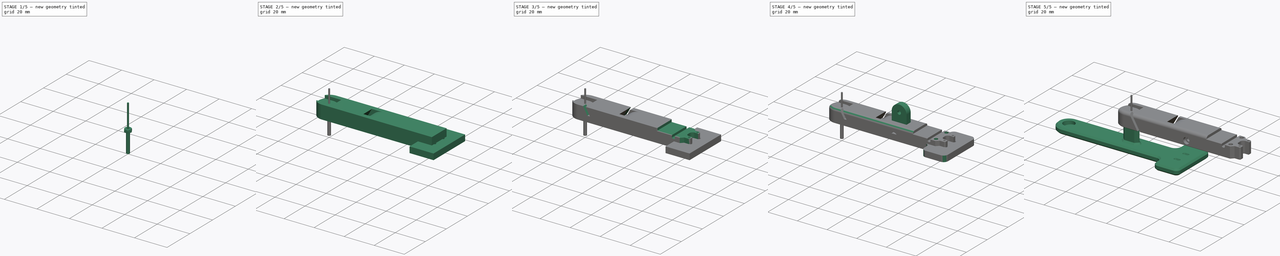
[diagram: build sequence overview — one tinted view per stage of 5, left to right]
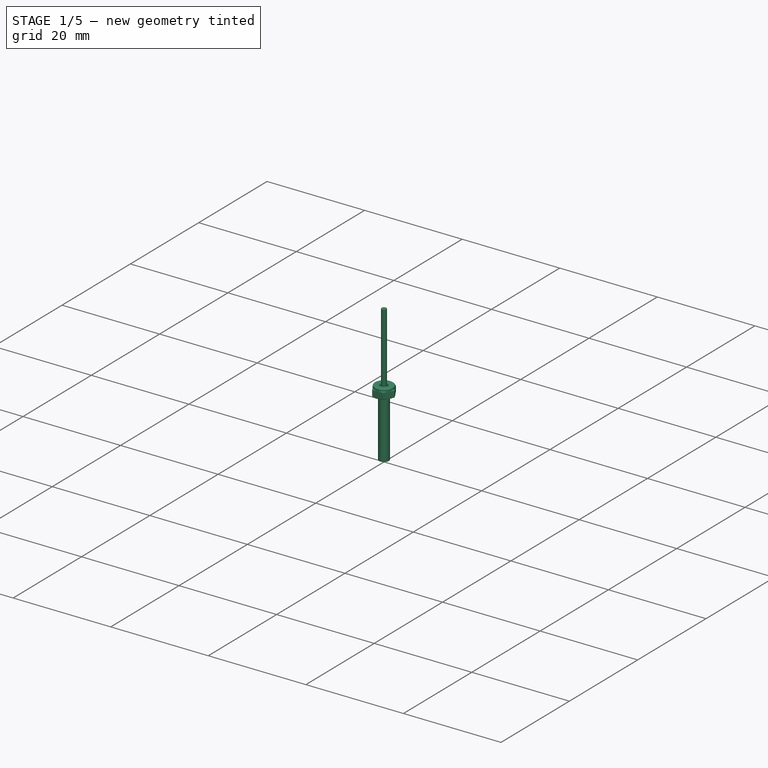
[diagram: stage 1 of 5 — iso view after this stage's code; geometry added in this stage tinted green]
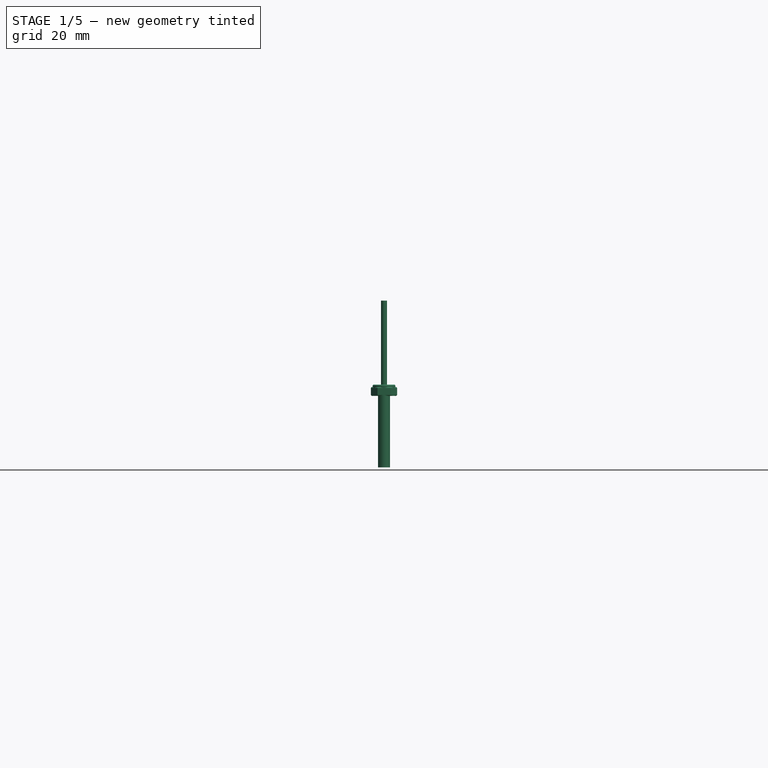
[diagram: stage 1 of 5 — front view after this stage's code; geometry added in this stage tinted green]
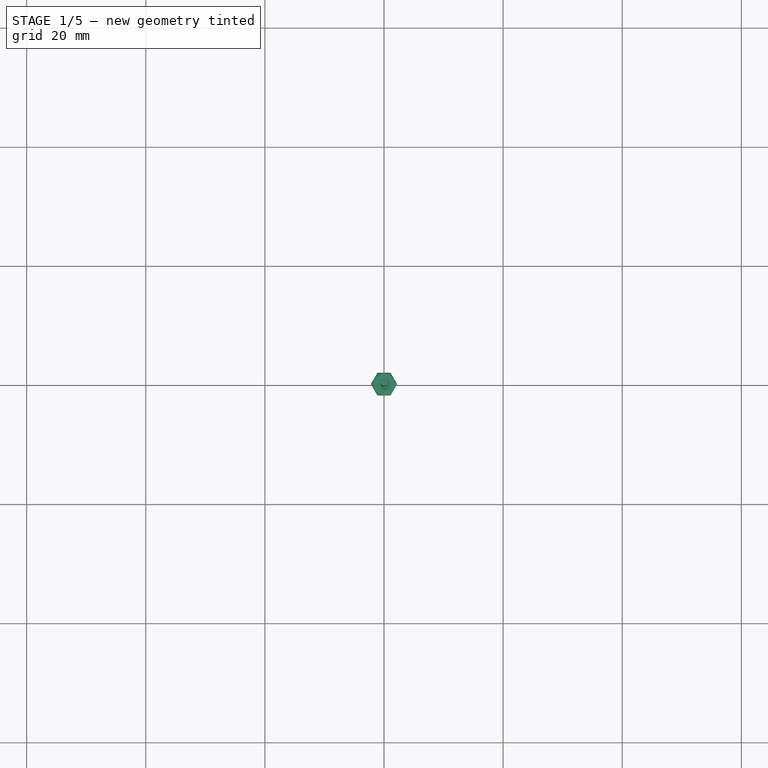
[diagram: stage 1 of 5 — top view after this stage's code; geometry added in this stage tinted green]
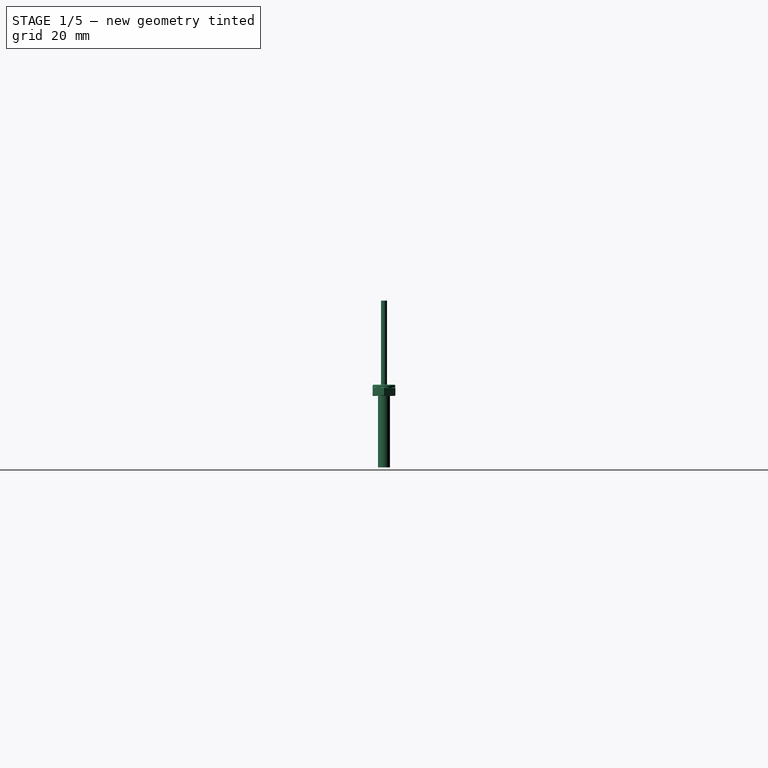
[diagram: stage 1 of 5 — right view after this stage's code; geometry added in this stage tinted green]
FCSTD DOCUMENT  (FreeCAD 2022.430R28641 (Git))
Label: Fixture
License: All rights reserved
LicenseURL: http://en.wikipedia.org/wiki/All_rights_reserved
objects: Sketcher::SketchObject×30, PartDesign::Pocket×18, PartDesign::Body×17, PartDesign::FeatureBase×11, PartDesign::Chamfer×10, PartDesign::Pad×9, PartDesign::Fillet×7, Part::SubShapeBinder×2, Part::Feature×2, PartDesign::Mirrored×2, PartDesign::SubtractiveLoft×1, PartDesign::Groove×1
note: 217 computed .brp shape members not serialized (recipe doc carries the construction recipe); baked Part::Feature solids carry a one-line shape summary decoded from their .brp

FEATURE [Sketcher::SketchObject] Sketch036
  ExternalGeometry = -> [Pocket021]
  FullyConstrained = true
  MapMode = 5
  Placement = pos=(0,0,0) rot=(1,0,0;3.14159rad)
  Support = -> [Pocket021]
  TreeRank = 124
  sketch-geometry (2):
    g0: Circle CenterX=72 CenterY=4 CenterZ=0 NormalX=0 NormalY=0 NormalZ=1 AngleXU=0 Radius=0.6
    g1: Circle CenterX=72 CenterY=-4 CenterZ=0 NormalX=0 NormalY=0 NormalZ=1 AngleXU=0 Radius=0.6
  constraints (5):
    c: Symmetric(g0,g1,g-1)
    c: Equal(g0,g1)
    c: Diameter(g0) = 1.2
    c: Distance(g0,g-3) = 1.25
    c: DistanceY(g1,g0) = 8
FEATURE [Part::Feature] Feature  label="Clip2"
  Placement = pos=(72,0,10.4) rot=(0,0,1;-1.5708rad)
  TreeRank = 128
  shape: bbox 9.75 x 13.5 x 1.6 mm, 27 faces (baked)
FEATURE [Part::Feature] Feature001  label="Clip"
  Placement = pos=(72,0,19.4) rot=(0,0,1;-1.5708rad)
  TreeRank = 129
  shape: bbox 21.75 x 13.5 x 5.54 mm, 169 faces, 2 solids (baked)
FEATURE [Sketcher::SketchObject] Sketch037
  FullyConstrained = true
  MapMode = 5
  Support = -> [XY_Plane002]
  TreeRank = 140
  sketch-geometry (1):
    g0: Circle CenterX=0 CenterY=0 CenterZ=0 NormalX=0 NormalY=0 NormalZ=1 AngleXU=0 Radius=0.5
  constraints (2):
    c: Coincident(g0,g-1)
    c: Diameter(g0) = 1
FEATURE [PartDesign::Pad] Pad003
  ClaimChildren = false
  Direction = (1,1,1)
  Fit = 0
  FitJoin = 0
  InnerFit = 0
  InnerFitJoin = 0
  InnerTaperAngle = 0
  InnerTaperAngleRev = 0
  Length = 13
  Length2 = 100
  Linearize = true
  NewSolid = false
  Profile = -> Sketch037
  Suppress = false
  TreeRank = 141
  Type = 0
  _ProfileBasedVersion = 1
FEATURE [Sketcher::SketchObject] Sketch038
  FullyConstrained = true
  MapMode = 5
  Support = -> [XY_Plane002]
  TreeRank = 142
  sketch-geometry (1):
    g0: Circle CenterX=0 CenterY=0 CenterZ=0 NormalX=0 NormalY=0 NormalZ=1 AngleXU=0 Radius=0.37
  constraints (2):
    c: Coincident(g0,g-1)
    c: Diameter(g0) = 0.74
FEATURE [Sketcher::SketchObject] Sketch039
  FullyConstrained = true
  MapMode = 5
  Support = -> [XY_Plane003]
  TreeRank = 155
  sketch-geometry (1):
    g0: Circle CenterX=0 CenterY=0 CenterZ=0 NormalX=0 NormalY=0 NormalZ=1 AngleXU=0 Radius=0.5
  constraints (2):
    c: Coincident(g0,g-1)
    c: Diameter(g0) = 1
FEATURE [PartDesign::Pad] Pad005
  ClaimChildren = false
  Direction = (1,1,1)
  Fit = 0
  FitJoin = 0
  InnerFit = 0
  InnerFitJoin = 0
  InnerTaperAngle = 0
  InnerTaperAngleRev = 0
  Length = 16
  Length2 = 100
  Linearize = true
  NewSolid = false
  Profile = -> Sketch039
  Suppress = false
  TreeRank = 156
  Type = 0
  _ProfileBasedVersion = 1
FEATURE [Sketcher::SketchObject] Sketch041
  FullyConstrained = true
  MapMode = 5
  Support = -> [XY_Plane005]
  TreeRank = 183
  sketch-geometry (8):
    g0: LineSegment StartX=-1.09697 StartY=-1.9 StartZ=0 EndX=1.09697 EndY=-1.9 EndZ=0
    g1: LineSegment StartX=1.09697 StartY=-1.9 StartZ=0 EndX=2.19393 EndY=0 EndZ=0
    g2: LineSegment StartX=2.19393 StartY=0 StartZ=0 EndX=1.09697 EndY=1.9 EndZ=0
    g3: LineSegment StartX=1.09697 StartY=1.9 StartZ=0 EndX=-1.09697 EndY=1.9 EndZ=0
    g4: LineSegment StartX=-1.09697 StartY=1.9 StartZ=0 EndX=-2.19393 EndY=0 EndZ=0
    g5: LineSegment StartX=-2.19393 StartY=0 StartZ=0 EndX=-1.09697 EndY=-1.9 EndZ=0
    g6: Circle [constr] CenterX=0 CenterY=0 CenterZ=0 NormalX=0 NormalY=0 NormalZ=1 AngleXU=0 Radius=2.19393
    g7: Circle CenterX=0 CenterY=0 CenterZ=0 NormalX=0 NormalY=0 NormalZ=1 AngleXU=0 Radius=1
  constraints (18):
    c: Coincident(g0,g1)
    c: Coincident(g1,g2)
    c: Coincident(g2,g3)
    c: Coincident(g3,g4)
    c: Coincident(g4,g5)
    c: Coincident(g5,g0)
    c: Equal(g0, g1-g5) x5
    c: PointOnObject(g0,g6)
    c: PointOnObject(g1,g6)
    c: PointOnObject(g2,g6)
    c: PointOnObject(g3,g6)
    c: PointOnObject(g4,g6)
    c: PointOnObject(g5,g6)
    c: Coincident(g6,g-1)
    c: Distance(g3,g0) = 3.8
    c: Horizontal(g0)
    c: Coincident(g7,g6)
    c: Diameter(g7) = 2
FEATURE [PartDesign::Pad] Pad006
  ClaimChildren = false
  Direction = (1,1,1)
  Fit = 0
  FitJoin = 0
  InnerFit = 0
  InnerFitJoin = 0
  InnerTaperAngle = 0
  InnerTaperAngleRev = 0
  Length = 1.5
  Length2 = 100
  Linearize = true
  NewSolid = false
  Profile = -> Sketch041
  Suppress = false
  TreeRank = 184
  Type = 0
  _ProfileBasedVersion = 1
FEATURE [Sketcher::SketchObject] Sketch042
  FullyConstrained = true
  MapMode = 5
  Support = -> [XY_Plane008]
  TreeRank = 217
  sketch-geometry (1):
    g0: Circle CenterX=0 CenterY=0 CenterZ=0 NormalX=0 NormalY=0 NormalZ=1 AngleXU=0 Radius=1.9
  constraints (2):
    c: Coincident(g0,g-1)
    c: Diameter(g0) = 3.8
FEATURE [PartDesign::Pad] Pad007
  ClaimChildren = false
  Direction = (1,1,1)
  Fit = 0
  FitJoin = 0
  InnerFit = 0
  InnerFitJoin = 0
  InnerTaperAngle = 0
  InnerTaperAngleRev = 0
  Length = 1.9
  Length2 = 100
  Linearize = true
  NewSolid = false
  Profile = -> Sketch042
  Suppress = false
  TreeRank = 218
  Type = 0
  _ProfileBasedVersion = 1
FEATURE [Sketcher::SketchObject] Sketch043
  FullyConstrained = true
  MapMode = 5
  Placement = pos=(0,0,1.9) rot=(0,0,1;0rad)
  Support = -> [Pad007]
  TreeRank = 219
  sketch-geometry (7):
    g0: LineSegment StartX=0.866025 StartY=0 StartZ=0 EndX=0.433013 EndY=0.75 EndZ=0
    g1: LineSegment StartX=0.433013 StartY=0.75 StartZ=0 EndX=-0.433013 EndY=0.75 EndZ=0
    g2: LineSegment StartX=-0.433013 StartY=0.75 StartZ=0 EndX=-0.866025 EndY=1e-16 EndZ=0
    g3: LineSegment StartX=-0.866025 StartY=1e-16 StartZ=0 EndX=-0.433013 EndY=-0.75 EndZ=0
    g4: LineSegment StartX=-0.433013 StartY=-0.75 StartZ=0 EndX=0.433013 EndY=-0.75 EndZ=0
    g5: LineSegment StartX=0.433013 StartY=-0.75 StartZ=0 EndX=0.866025 EndY=0 EndZ=0
    g6: Circle [constr] CenterX=0 CenterY=0 CenterZ=0 NormalX=0 NormalY=0 NormalZ=1 AngleXU=0 Radius=0.866025
  constraints (16):
    c: Coincident(g0,g1)
    c: Coincident(g1,g2)
    c: Coincident(g2,g3)
    c: Coincident(g3,g4)
    c: Coincident(g4,g5)
    c: Coincident(g5,g0)
    c: Equal(g0, g1-g5) x5
    c: PointOnObject(g0,g6)
    c: PointOnObject(g1,g6)
    c: PointOnObject(g2,g6)
    c: PointOnObject(g3,g6)
    c: PointOnObject(g4,g6)
    c: PointOnObject(g5,g6)
    c: Coincident(g6,g-1)
    c: Distance(g1,g3) = 1.5
    c: Horizontal(g4)
FEATURE [PartDesign::Pocket] Pocket024
  BaseFeature = -> Pad007
  ClaimChildren = false
  Fit = 0
  FitJoin = 0
  InnerFit = 0
  InnerFitJoin = 0
  InnerTaperAngle = 0
  InnerTaperAngleRev = 0
  Length = 1.2
  Length2 = 100
  Linearize = true
  NewSolid = false
  Profile = -> Sketch043
  Suppress = false
  TreeRank = 220
  Type = 0
  _ProfileBasedVersion = 1
FEATURE [Sketcher::SketchObject] Sketch044
  FullyConstrained = true
  MapMode = 5
  Support = -> [XY_Plane008]
  TreeRank = 221
  sketch-geometry (1):
    g0: Circle CenterX=0 CenterY=0 CenterZ=0 NormalX=0 NormalY=0 NormalZ=1 AngleXU=0 Radius=1
  constraints (2):
    c: Coincident(g0,g-1)
    c: Diameter(g0) = 2
FEATURE [PartDesign::Pad] Pad008
  BaseFeature = -> Pocket024
  ClaimChildren = false
  Direction = (1,1,1)
  Fit = 0
  FitJoin = 0
  InnerFit = 0
  InnerFitJoin = 0
  InnerTaperAngle = 0
  InnerTaperAngleRev = 0
  Length = 12
  Length2 = 100
  Linearize = true
  NewSolid = false
  Profile = -> Sketch044
  Reversed = true
  Suppress = false
  TreeRank = 222
  Type = 0
  _ProfileBasedVersion = 1
FEATURE [PartDesign::Body] Body014  label="Bottom夹紧状态"
  AutoGroupSolids = false
  BaseFeature = -> Body
  ClaimAllChildren = false
  ExportMode = 0
  Group = -> [Clone007]
  Origin = -> Origin014
  Placement = pos=(40,0,15) rot=(0,1,0;-0.034907rad)
  Tip = -> Clone007
  TreeRank = 35
  _ExportChildren = -> [Clone007]
  _GroupVersion = 1
FEATURE [Sketcher::SketchObject] Sketch048
  FullyConstrained = false
  MapMode = 5
  Placement = pos=(0,0,0) rot=(0.57735,0.57735,0.57735;2.0944rad)
  Support = -> [YZ_Plane002]
  TreeRank = 346
  sketch-geometry (8):
    g0: ArcOfCircle CenterX=-0.4 CenterY=4.34142 CenterZ=0 NormalX=0 NormalY=0 NormalZ=1 AngleXU=0 Radius=0.1 StartAngle=3.14159 EndAngle=3.92699
    g1: ArcOfCircle CenterX=-0.541421 CenterY=4.2 CenterZ=0 NormalX=0 NormalY=0 NormalZ=1 AngleXU=0 Radius=0.1 StartAngle=5.49779 EndAngle=7.06858
    g2: ArcOfCircle CenterX=-0.4 CenterY=4.05858 CenterZ=0 NormalX=0 NormalY=0 NormalZ=1 AngleXU=0 Radius=0.1 StartAngle=2.35619 EndAngle=3.14159
    g3: LineSegment [constr] StartX=-0.5 StartY=4.34142 StartZ=0 EndX=-0.5 EndY=4.65149 EndZ=0
    g4: LineSegment [constr] StartX=-0.5 StartY=4.05858 StartZ=0 EndX=-0.5 EndY=3.32395 EndZ=0
    g5: LineSegment [constr] StartX=-0.541421 StartY=4.2 StartZ=0 EndX=-0.470711 EndY=4.27071 EndZ=0
    g6: LineSegment [constr] StartX=-0.470711 StartY=4.12929 StartZ=0 EndX=-0.541421 EndY=4.2 EndZ=0
    g7: LineSegment StartX=-0.5 StartY=4.34142 StartZ=0 EndX=-0.5 EndY=4.05858 EndZ=0
  constraints (22):
    c: Coincident(g2,g1)
    c: Tangent(g1,g2) = 1.5708
    c: Tangent(g1,g0) = 1.5708
    c: DistanceY(g-1,g1) = 4.2
    c: Vertical(g3)
    c: Equal(g0,g1)
    c: Equal(g1,g2)
    c: Tangent(g3,g0) = 1.5708
    c: Vertical(g0,g1)
    c: Tangent(g4,g2) = -1.5708
    c: Vertical(g4)
    c: Coincident(g5,g1)
    c: Coincident(g5,g0)
    c: Coincident(g6,g1)
    c: Coincident(g6,g1)
    c: Angle(g6,g5) = 1.5708
    c: Coincident(g7,g0)
    c: Coincident(g7,g2)
    c: Vertical(g7)
    c: Tangent(g7,g2)
    c: Radius(g1) = 0.1
    c: Distance(g-1,g7) = 0.5
FEATURE [PartDesign::Groove] Groove
  Angle = 360
  Axis = (-2e-16,3e-16,1)
  Base = (0,0,0)
  BaseFeature = -> Pad003
  ClaimChildren = false
  Fit = 0
  FitJoin = 0
  InnerFit = 0
  InnerFitJoin = 0
  NewSolid = false
  Profile = -> Sketch048
  ReferenceAxis = -> Sketch048 [V_Axis]
  Reversed = true
  Suppress = false
  TreeRank = 347
  _ProfileBasedVersion = 1
FEATURE [PartDesign::Pad] Pad004
  BaseFeature = -> Groove
  ClaimChildren = false
  Direction = (1,1,1)
  Fit = 0
  FitJoin = 0
  InnerFit = 0
  InnerFitJoin = 0
  InnerTaperAngle = 0
  InnerTaperAngleRev = 0
  Length = 3.3
  Length2 = 100
  Linearize = true
  NewSolid = false
  Profile = -> Sketch038
  Reversed = true
  Suppress = false
  TreeRank = 143
  Type = 0
  _ProfileBasedVersion = 1
FEATURE [PartDesign::Body] Body018  label="弹簧针004"
  AutoGroupSolids = false
  BaseFeature = -> Body002
  ClaimAllChildren = false
  ExportMode = 0
  Group = -> [Clone011]
  Origin = -> Origin018
  Placement = pos=(73.98,0.33,8) rot=(0,0,1;0rad)
  Tip = -> Clone011
  TreeRank = 345
  _ExportChildren = -> [Clone011]
  _GroupVersion = 1
FEATURE [PartDesign::Fillet] Fillet005
  Base = -> Pad008 [Edge3,Edge7,Edge8,Edge9,Edge10,Edge5,Edge6]
  BaseFeature = -> Pad008
  NewSolid = false
  Radius = 0.2
  SupportTransform = false
  Suppress = false
  TreeRank = 348
FEATURE [PartDesign::Body] Body011  label="M2x12_002"
  AutoGroupSolids = false
  BaseFeature = -> Body008
  ClaimAllChildren = false
  ExportMode = 0
  Group = -> [Clone004]
  Origin = -> Origin011
  Placement = pos=(67,-5,21) rot=(0,0,1;0rad)
  Tip = -> Clone004
  TreeRank = 259
  _ExportChildren = -> [Clone004]
  _GroupVersion = 1
FEATURE [PartDesign::Fillet] Fillet006
  Base = -> Pad006 [Edge9,Edge6,Edge3,Edge17,Edge15,Edge12,Edge13,Edge10,Edge7,Edge16,Edge18,Edge4]
  BaseFeature = -> Pad006
  NewSolid = false
  Radius = 0.2
  SupportTransform = false
  Suppress = false
  TreeRank = 349
FEATURE [PartDesign::Body] Body007  label="M2螺母002"
  AutoGroupSolids = false
  BaseFeature = -> Body005
  ClaimAllChildren = false
  ExportMode = 0
  Group = -> [Clone002]
  Origin = -> Origin007
  Placement = pos=(40,5.5,15) rot=(1,0,0;-1.5708rad)
  Tip = -> Clone002
  TreeRank = 206
  _ExportChildren = -> [Clone002]
  _GroupVersion = 1
FEATURE [PartDesign::Chamfer] Chamfer009
  Angle = 45
  Base = -> Pad005 [Edge2]
  BaseFeature = -> Pad005
  ChamferType = 1
  FlipDirection = false
  NewSolid = false
  Size = 0.5
  Size2 = 0.25
  SupportTransform = false
  Suppress = false
  TreeRank = 351
FEATURE [PartDesign::Fillet] Fillet007
  Base = -> Chamfer009 [Edge2,Edge5]
  BaseFeature = -> Chamfer009
  NewSolid = false
  Radius = 0.3
  SupportTransform = false
  Suppress = false
  TreeRank = 352
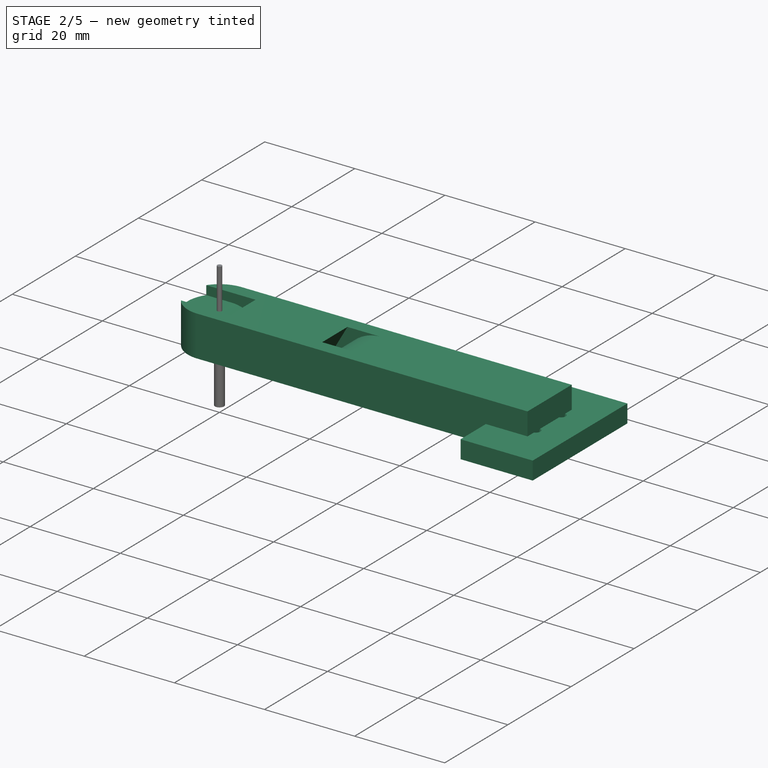
[diagram: stage 2 of 5 — iso view after this stage's code; geometry added in this stage tinted green]
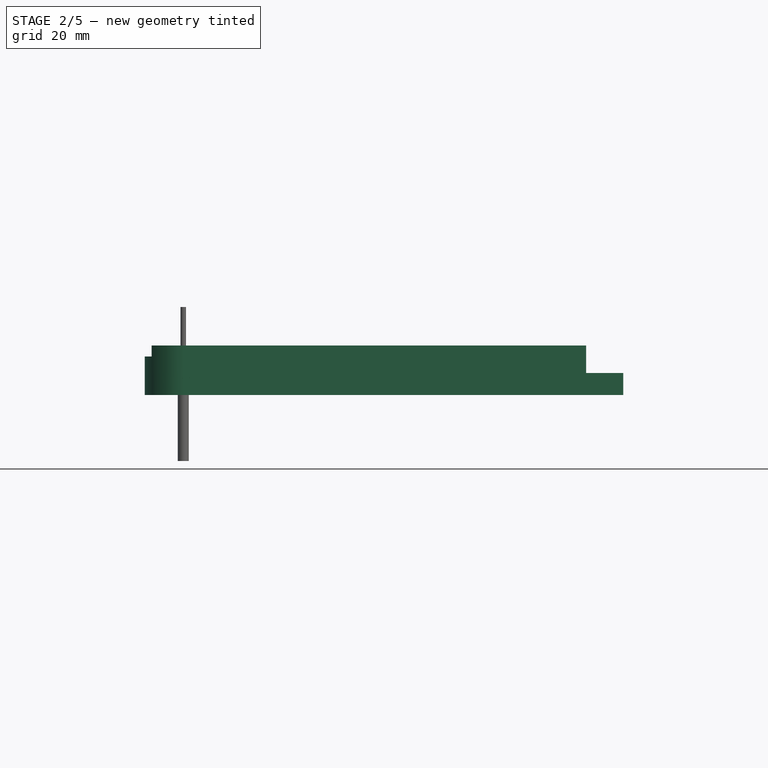
[diagram: stage 2 of 5 — front view after this stage's code; geometry added in this stage tinted green]
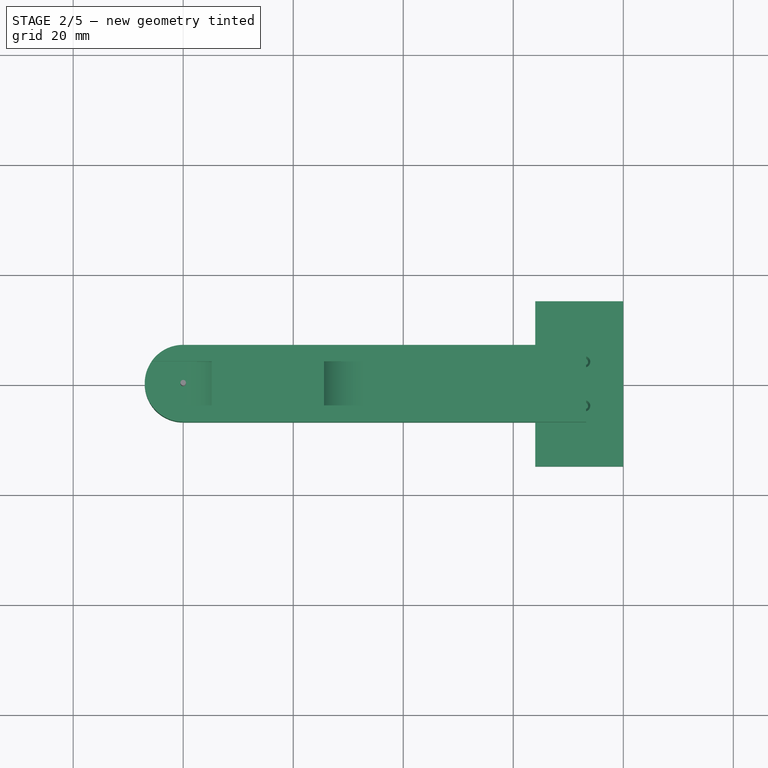
[diagram: stage 2 of 5 — top view after this stage's code; geometry added in this stage tinted green]
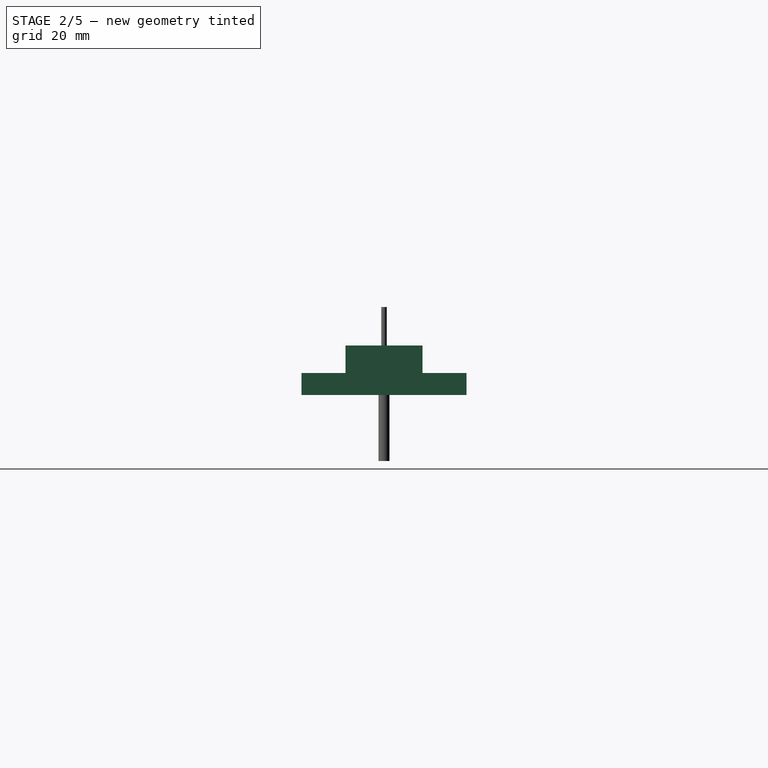
[diagram: stage 2 of 5 — right view after this stage's code; geometry added in this stage tinted green]
FEATURE [Sketcher::SketchObject] Sketch
  FullyConstrained = true
  MapMode = 5
  Support = -> [XY_Plane]
  TreeRank = 11
  sketch-geometry (9):
    g0: LineSegment StartX=64 StartY=15 StartZ=0 EndX=80 EndY=15 EndZ=0
    g1: LineSegment StartX=80 StartY=15 StartZ=0 EndX=80 EndY=-15 EndZ=0
    g2: LineSegment StartX=80 StartY=-15 StartZ=0 EndX=64 EndY=-15 EndZ=0
    g3: LineSegment StartX=64 StartY=-15 StartZ=0 EndX=64 EndY=-7 EndZ=0
    g4: LineSegment StartX=64 StartY=-7 StartZ=0 EndX=0 EndY=-7 EndZ=0
    g5: LineSegment StartX=64 StartY=15 StartZ=0 EndX=64 EndY=7 EndZ=0
    g6: LineSegment StartX=64 StartY=7 StartZ=0 EndX=0 EndY=7 EndZ=0
    g7: ArcOfCircle CenterX=0 CenterY=0 CenterZ=0 NormalX=0 NormalY=0 NormalZ=1 AngleXU=0 Radius=7 StartAngle=1.5708 EndAngle=4.71239
    g8: GeomPoint X=-7 Y=0 Z=0
  constraints (24):
    c: Horizontal(g0)
    c: Coincident(g1,g0)
    c: Vertical(g1)
    c: Coincident(g2,g1)
    c: Horizontal(g2)
    c: Vertical(g3)
    c: Coincident(g4,g3)
    c: Horizontal(g4)
    c: Coincident(g5,g0)
    c: Vertical(g5)
    c: Coincident(g6,g5)
    c: Horizontal(g6)
    c: DistanceY(g1,g1) = 30
    c: Coincident(g3,g2)
    c: DistanceX(g2,g2) = 16
    c: Equal(g0,g2)
    c: PointOnObject(g8,g7)
    c: Coincident(g7,g-1)
    c: PointOnObject(g8,g-1)
    c: Distance(g6,g4) = 14
    c: Equal(g5,g3)
    c: Distance(g7,g1) = 80
    c: Tangent(g7,g6) = -1.5708
    c: Tangent(g7,g4) = 1.5708
FEATURE [PartDesign::Pad] Pad
  ClaimChildren = false
  Direction = (1,1,1)
  Fit = 0
  FitJoin = 0
  InnerFit = 0
  InnerFitJoin = 0
  InnerTaperAngle = 0
  InnerTaperAngleRev = 0
  Length = 4
  Length2 = 100
  Linearize = true
  NewSolid = false
  Profile = -> Sketch
  Suppress = false
  TreeRank = 12
  Type = 0
  _ProfileBasedVersion = 1
FEATURE [Sketcher::SketchObject] Sketch001
  AttachmentOffset = pos=(0,0,0) rot=(0,-1,0;0.122173rad)
  FullyConstrained = true
  MapMode = 5
  Placement = pos=(0,0,4) rot=(0,-1,0;0.122173rad)
  Support = -> [Pad]
  TreeRank = 13
  sketch-geometry (1):
    g0: Circle CenterX=0 CenterY=0 CenterZ=0 NormalX=0 NormalY=0 NormalZ=1 AngleXU=0 Radius=3.5
  constraints (2):
    c: Coincident(g0,g-1)
    c: Diameter(g0) = 7
FEATURE [PartDesign::Pocket] Pocket
  BaseFeature = -> Pad
  ClaimChildren = false
  Fit = 0
  FitJoin = 0
  InnerFit = 0
  InnerFitJoin = 0
  InnerTaperAngle = 0
  InnerTaperAngleRev = 0
  Length = 2
  Length2 = 100
  Linearize = true
  Midplane = true
  NewSolid = false
  Profile = -> Sketch001
  Suppress = false
  TreeRank = 14
  Type = 4
  _ProfileBasedVersion = 1
FEATURE [Part::SubShapeBinder] Import001  label="Import001(Pocket002)"
  BindCopyOnChange = 0
  BindMode = 0
  ClaimChildren = false
  Context = -> Body001 [Import001.]
  FillStyle = 0
  Fuse = false
  MakeFace = false
  PartialLoad = false
  Relative = true
  Support = -> [Body[Pocket002.]]
  TreeRank = 119
  _Version = 8
FEATURE [Sketcher::SketchObject] Sketch009
  ExternalGeometry = -> [Import001]
  FullyConstrained = true
  MapMode = 5
  Placement = pos=(0,0,0) rot=(1,0,0;1.5708rad)
  Support = -> [XZ_Plane001]
  TreeRank = 45
FEATURE [Part::SubShapeBinder] Import  label="Import(Pocket)"
  BindCopyOnChange = 0
  BindMode = 0
  ClaimChildren = false
  Context = -> Body001 [Import.]
  FillStyle = 0
  Fuse = false
  MakeFace = false
  PartialLoad = false
  Relative = true
  Support = -> [Body[Pocket.]]
  TreeRank = 121
  _Version = 8
FEATURE [Sketcher::SketchObject] Sketch005
  ExternalGeometry = -> [Import]
  FullyConstrained = false
  MapMode = 5
  Support = -> [XY_Plane001]
  TreeRank = 37
  sketch-geometry (5):
    g0: LineSegment StartX=-1.1e-15 StartY=7 StartZ=0 EndX=73.25 EndY=7 EndZ=0
    g1: LineSegment StartX=73.25 StartY=7 StartZ=0 EndX=73.25 EndY=-7 EndZ=0
    g2: LineSegment StartX=73.25 StartY=-7 StartZ=0 EndX=0 EndY=-7 EndZ=0
    g3: ArcOfCircle CenterX=0 CenterY=0 CenterZ=0 NormalX=0 NormalY=0 NormalZ=1 AngleXU=0 Radius=7 StartAngle=1.5708 EndAngle=4.71239
    g4: LineSegment [constr] StartX=72 StartY=7 StartZ=0 EndX=72 EndY=-7.00624 EndZ=0
  constraints (11):
    c: Horizontal(g0)
    c: Coincident(g1,g2)
    c: Distance(g1) = 14
    c: Symmetric(g1,g0,g-1)
    c: Coincident(g0,g1)
    c: Coincident(g3,g-1)
    c: Tangent(g3,g0) = 1.5708
    c: Tangent(g3,g2) = 1.5708
    c: PointOnObject(g4,g0)
    c: Symmetric(g-4,g-4,g4)
    c: Distance(g0,g4) = 1.25
FEATURE [PartDesign::Pad] Pad002
  ClaimChildren = false
  Direction = (1,1,1)
  Fit = 0
  FitJoin = 0
  InnerFit = 0
  InnerFitJoin = 0
  InnerTaperAngle = 0
  InnerTaperAngleRev = 0
  Length = 9
  Length2 = 100
  Linearize = true
  NewSolid = false
  Profile = -> Sketch005
  Suppress = false
  TreeRank = 38
  Type = 0
  _ProfileBasedVersion = 1
FEATURE [Sketcher::SketchObject] Sketch006
  AttachmentOffset = pos=(0,0,0) rot=(0,1,0;0.122173rad)
  FullyConstrained = true
  MapMode = 5
  Placement = pos=(0,0,0) rot=(0.998135,0,0.061049;3.14159rad)
  Support = -> [Pad002]
  TreeRank = 39
  sketch-geometry (2):
    g0: Circle CenterX=-1 CenterY=0 CenterZ=0 NormalX=0 NormalY=0 NormalZ=1 AngleXU=0 Radius=3.5
    g1: Circle CenterX=-1 CenterY=0 CenterZ=0 NormalX=0 NormalY=0 NormalZ=1 AngleXU=0 Radius=2
  constraints (5):
    c: Diameter(g0) = 7
    c: Diameter(g1) = 4
    c: Coincident(g0,g1)
    c: PointOnObject(g0,g-1)
    c: Distance(g-1,g0) = 1
FEATURE [PartDesign::Pocket] Pocket003
  BaseFeature = -> Pad002
  ClaimChildren = false
  Fit = 0
  FitJoin = 0
  InnerFit = 0
  InnerFitJoin = 0
  InnerTaperAngle = 0
  InnerTaperAngleRev = 0
  Length = 3
  Length2 = 100
  Linearize = true
  Midplane = true
  NewSolid = false
  Profile = -> Sketch006
  Suppress = false
  TreeRank = 40
  Type = 4
  _ProfileBasedVersion = 1
FEATURE [Sketcher::SketchObject] Sketch007
  ExternalGeometry = -> [Pocket003]
  FullyConstrained = true
  MapMode = 5
  Placement = pos=(0,0,9) rot=(0,0,1;0rad)
  Support = -> [Pocket003]
  TreeRank = 41
  sketch-geometry (4):
    g0: LineSegment StartX=52.85 StartY=7 StartZ=0 EndX=73.25 EndY=7 EndZ=0
    g1: LineSegment StartX=73.25 StartY=7 StartZ=0 EndX=73.25 EndY=-7 EndZ=0
    g2: LineSegment StartX=73.25 StartY=-7 StartZ=0 EndX=52.85 EndY=-7 EndZ=0
    g3: LineSegment StartX=52.85 StartY=-7 StartZ=0 EndX=52.85 EndY=7 EndZ=0
  constraints (11):
    c: Coincident(g0,g1)
    c: Coincident(g1,g2)
    c: Coincident(g2,g3)
    c: Coincident(g3,g0)
    c: Horizontal(g0)
    c: Horizontal(g2)
    c: Vertical(g1)
    c: Vertical(g3)
    c: DistanceX(g2,g2) = 20.4
    c: Equal(g-3,g1)
    c: Coincident(g1,g-3)
FEATURE [Sketcher::SketchObject] Sketch032
  ExternalGeometry = -> [Pocket003]
  FullyConstrained = true
  MapMode = 5
  Placement = pos=(0,0,0) rot=(1,0,0;1.5708rad)
  Support = -> [XZ_Plane001]
  TreeRank = 107
  sketch-geometry (12):
    g0: ArcOfCircle CenterX=33.094 CenterY=0 CenterZ=0 NormalX=0 NormalY=0 NormalZ=1 AngleXU=0 Radius=9 StartAngle=1.5708 EndAngle=2.61799
    g1: ArcOfCircle CenterX=1.3e-15 CenterY=0 CenterZ=0 NormalX=0 NormalY=0 NormalZ=1 AngleXU=0 Radius=7 StartAngle=0.523599 EndAngle=1.5708
    g2: LineSegment StartX=25.2998 StartY=4.5 StartZ=0 EndX=22.7017 EndY=0 EndZ=0
    g3: LineSegment StartX=6.06218 StartY=3.5 StartZ=0 EndX=8.0829 EndY=0 EndZ=0
    g4: LineSegment StartX=22.7017 StartY=0 StartZ=0 EndX=20.3923 EndY=0 EndZ=0
    g5: LineSegment StartX=20.3923 StartY=0 StartZ=0 EndX=25.5885 EndY=9 EndZ=0
    g6: LineSegment StartX=10.3923 StartY=0 StartZ=0 EndX=5.19615 EndY=9 EndZ=0
    g7: LineSegment StartX=8.0829 StartY=0 StartZ=0 EndX=10.3923 EndY=0 EndZ=0
    g8: LineSegment StartX=25.5885 StartY=9 StartZ=0 EndX=33.094 EndY=9 EndZ=0
    g9: LineSegment StartX=5.19615 StartY=9 StartZ=0 EndX=-10 EndY=9 EndZ=0
    g10: LineSegment StartX=-10 StartY=9 StartZ=0 EndX=-10 EndY=7 EndZ=0
    g11: LineSegment StartX=-10 StartY=7 StartZ=0 EndX=1.8e-15 EndY=7 EndZ=0
  constraints (35):
    c: Vertical(g1,g1)
    c: PointOnObject(g2,g-1)
    c: PointOnObject(g3,g-1)
    c: Tangent(g1,g3) = 1.5708
    c: Tangent(g2,g0) = -1.5708
    c: Angle(g-1,g2) = 1.0472
    c: Angle(g-1,g3) = 2.0944
    c: Coincident(g2,g4)
    c: Coincident(g4,g5)
    c: PointOnObject(g4,g-1)
    c: Angle(g-1,g5) = 1.0472
    c: PointOnObject(g6,g-1)
    c: Coincident(g3,g7)
    c: Coincident(g7,g6)
    c: Angle(g-1,g6) = 2.0944
    c: PointOnObject(g6,g-3)
    c: PointOnObject(g5,g-3)
    c: Coincident(g8,g5)
    c: Coincident(g8,g0)
    c: Distance(g2,g5) = 2
    c: Distance(g3,g6) = 2
    c: Tangent(g0,g-3)
    c: PointOnObject(g0,g-3)
    c: PointOnObject(g0,g-1)
    c: DistanceX(g6,g4) = 10
    c: PointOnObject(g1,g-1)
    c: Coincident(g6,g9)
    c: PointOnObject(g9,g-3)
    c: Coincident(g9,g10)
    c: Vertical(g10)
    c: Coincident(g10,g11)
    c: Tangent(g11,g1) = 1.5708
    c: DistanceY(g10,g10) = 2
    c: DistanceX(g11,g11) = 10
    c: PointOnObject(g1,g-2)
FEATURE [PartDesign::Pocket] Pocket018
  BaseFeature = -> Pocket003
  ClaimChildren = false
  Fit = 0
  FitJoin = 0
  InnerFit = 0
  InnerFitJoin = 0
  InnerTaperAngle = 0
  InnerTaperAngleRev = 0
  Length = 8
  Length2 = 100
  Linearize = true
  Midplane = true
  NewSolid = false
  Profile = -> Sketch032
  Suppress = false
  TreeRank = 108
  Type = 0
  _ProfileBasedVersion = 1
FEATURE [PartDesign::Body] Body001  label="Top"
  AutoGroupSolids = false
  ClaimAllChildren = false
  ExportMode = 0
  Group = -> [Sketch005,Import,Pad002,Sketch006,Pocket003,Sketch007,Sketch032,Pocket018,Sketch033,Pocket019,Sketch034,Pocket020,Pocket004,Sketch035,Pocket021,Fillet,Sketch036,Sketch040,Pocket023,Mirrored,Pocket022,Chamfer,Sketch008,Sketch031,Pocket017,Chamfer005,Pocket005,Sketch009,Import001,Pocket006,Sketch045,Pocket025,Chamfer008,Sketch011,Pocket008,Sketch012,Pocket009,Fillet003,Fillet004,Chamfer001,+1 more]
  Origin = -> Origin001
  Placement = pos=(0,0,12) rot=(0,0,1;0rad)
  Tip = -> Chamfer003
  TreeRank = 36
  _ExportChildren = -> [Import,Pad002,Pocket003,Pocket018,Pocket019,Pocket020,Pocket004,Pocket021,Fillet,Pocket023,Mirrored,Pocket022,Chamfer,Pocket017,Chamfer005,Pocket005,Import001,Pocket006,Pocket025,Chamfer008,Pocket008,Pocket009,Fillet003,Fillet004,Chamfer001,Chamfer003]
  _GroupVersion = 1
FEATURE [Sketcher::SketchObject] Sketch046
  ExternalGeometry = -> [Pocket]
  FullyConstrained = true
  MapMode = 5
  Placement = pos=(0,0,4) rot=(0,0,1;0rad)
  Support = -> [Pocket]
  TreeRank = 298
  sketch-geometry (5):
    g0: ArcOfCircle CenterX=71 CenterY=4 CenterZ=0 NormalX=0 NormalY=0 NormalZ=1 AngleXU=0 Radius=1 StartAngle=1.5708 EndAngle=4.71239
    g1: ArcOfCircle CenterX=73 CenterY=4 CenterZ=0 NormalX=0 NormalY=0 NormalZ=1 AngleXU=0 Radius=1 StartAngle=4.71239 EndAngle=7.85398
    g2: LineSegment StartX=71 StartY=3 StartZ=0 EndX=73 EndY=3 EndZ=0
    g3: LineSegment StartX=71 StartY=5 StartZ=0 EndX=73 EndY=5 EndZ=0
    g4: GeomPoint [constr] X=72 Y=4 Z=0
  constraints (11):
    c: Tangent(g0,g3) = 1.5708
    c: Tangent(g0,g2) = -1.5708
    c: Tangent(g2,g1) = -1.5708
    c: Tangent(g3,g1) = 1.5708
    c: Horizontal(g2)
    c: Equal(g0,g1)
    c: Symmetric(g0,g1,g4)
    c: Distance(g1,g1) = 2
    c: Distance(g2) = 2
    c: Distance(g4,g-3) = 8
    c: DistanceY(g-1,g4) = 4
FEATURE [Sketcher::SketchObject] Sketch047
  AttachmentOffset = pos=(0,0,-1) rot=(0,0,1;0rad)
  ExternalGeometry = -> [Pocket]
  FullyConstrained = true
  MapMode = 5
  Placement = pos=(0,0,3) rot=(0,0,1;0rad)
  Support = -> [Pocket]
  TreeRank = 299
  sketch-geometry (5):
    g0: ArcOfCircle CenterX=71 CenterY=4 CenterZ=0 NormalX=0 NormalY=0 NormalZ=1 AngleXU=0 Radius=0.6 StartAngle=1.5708 EndAngle=4.71239
    g1: ArcOfCircle CenterX=73 CenterY=4 CenterZ=0 NormalX=0 NormalY=0 NormalZ=1 AngleXU=0 Radius=0.6 StartAngle=4.71239 EndAngle=7.85398
    g2: LineSegment StartX=71 StartY=3.4 StartZ=0 EndX=73 EndY=3.4 EndZ=0
    g3: LineSegment StartX=71 StartY=4.6 StartZ=0 EndX=73 EndY=4.6 EndZ=0
    g4: GeomPoint [constr] X=72 Y=4 Z=0
  constraints (11):
    c: Tangent(g0,g3) = 1.5708
    c: Tangent(g0,g2) = -1.5708
    c: Tangent(g2,g1) = -1.5708
    c: Tangent(g3,g1) = 1.5708
    c: Horizontal(g2)
    c: Equal(g0,g1)
    c: Distance(g1,g1) = 1.2
    c: Symmetric(g0,g1,g4)
    c: Distance(g4,g-3) = 8
    c: DistanceY(g-1,g4) = 4
    c: Distance(g2) = 2
FEATURE [PartDesign::SubtractiveLoft] SubtractiveLoft001
  BaseFeature = -> Pocket
  ClaimChildren = false
  Closed = false
  Fit = 0
  FitJoin = 0
  InnerFit = 0
  InnerFitJoin = 0
  NewSolid = false
  Profile = -> Sketch046
  Ruled = false
  Sections = -> [Sketch047]
  Suppress = false
  TreeRank = 300
  _ProfileBasedVersion = 1
FEATURE [PartDesign::Mirrored] Mirrored001
  BaseFeature = -> SubtractiveLoft001
  CopyShape = false
  MirrorPlane = -> XZ_Plane
  NewSolid = false
  OriginalSubs = -> [SubtractiveLoft001]
  Originals = -> [SubtractiveLoft001]
  ParallelTransform = true
  SubTransform = true
  Suppress = false
  TreeRank = 301
FEATURE [PartDesign::Chamfer] Chamfer004
  Angle = 15
  Base = -> Pad004 [Edge9]
  BaseFeature = -> Pad004
  ChamferType = 2
  FlipDirection = false
  NewSolid = false
  Size = 1.2
  Size2 = 0.1
  SupportTransform = false
  Suppress = false
  TreeRank = 144
FEATURE [PartDesign::Body] Body002  label="弹簧针"
  AutoGroupSolids = false
  ClaimAllChildren = false
  ExportMode = 0
  Group = -> [Sketch037,Pad003,Sketch038,Sketch048,Groove,Pad004,Chamfer004]
  Origin = -> Origin002
  Placement = pos=(72,-1,8) rot=(0,0,1;0rad)
  Tip = -> Chamfer004
  TreeRank = 260
  _ExportChildren = -> [Pad003,Groove,Pad004,Chamfer004]
  _GroupVersion = 1
FEATURE [PartDesign::FeatureBase] Clone008
  BaseFeature = -> Body002
  NewSolid = false
  Suppress = false
  TreeRank = 311
FEATURE [PartDesign::Body] Body015  label="弹簧针001"
  AutoGroupSolids = false
  BaseFeature = -> Body002
  ClaimAllChildren = false
  ExportMode = 0
  Group = -> [Clone008]
  Origin = -> Origin015
  Placement = pos=(70.03,0.3,8) rot=(0,0,1;0rad)
  Tip = -> Clone008
  TreeRank = 312
  _ExportChildren = -> [Clone008]
  _GroupVersion = 1
FEATURE [PartDesign::FeatureBase] Clone009
  BaseFeature = -> Body002
  NewSolid = false
  Suppress = false
  TreeRank = 322
FEATURE [PartDesign::Body] Body016  label="弹簧针002"
  AutoGroupSolids = false
  BaseFeature = -> Body002
  ClaimAllChildren = false
  ExportMode = 0
  Group = -> [Clone009]
  Origin = -> Origin016
  Placement = pos=(71.25,1.45,8) rot=(0,0,1;0rad)
  Tip = -> Clone009
  TreeRank = 323
  _ExportChildren = -> [Clone009]
  _GroupVersion = 1
FEATURE [PartDesign::FeatureBase] Clone010
  BaseFeature = -> Body002
  NewSolid = false
  Suppress = false
  TreeRank = 333
FEATURE [PartDesign::Body] Body017  label="弹簧针003"
  AutoGroupSolids = false
  BaseFeature = -> Body002
  ClaimAllChildren = false
  ExportMode = 0
  Group = -> [Clone010]
  Origin = -> Origin017
  Placement = pos=(72.77,1.45,8) rot=(0,0,1;0rad)
  Tip = -> Clone010
  TreeRank = 334
  _ExportChildren = -> [Clone010]
  _GroupVersion = 1
FEATURE [PartDesign::FeatureBase] Clone011
  BaseFeature = -> Body002
  NewSolid = false
  Suppress = false
  TreeRank = 344
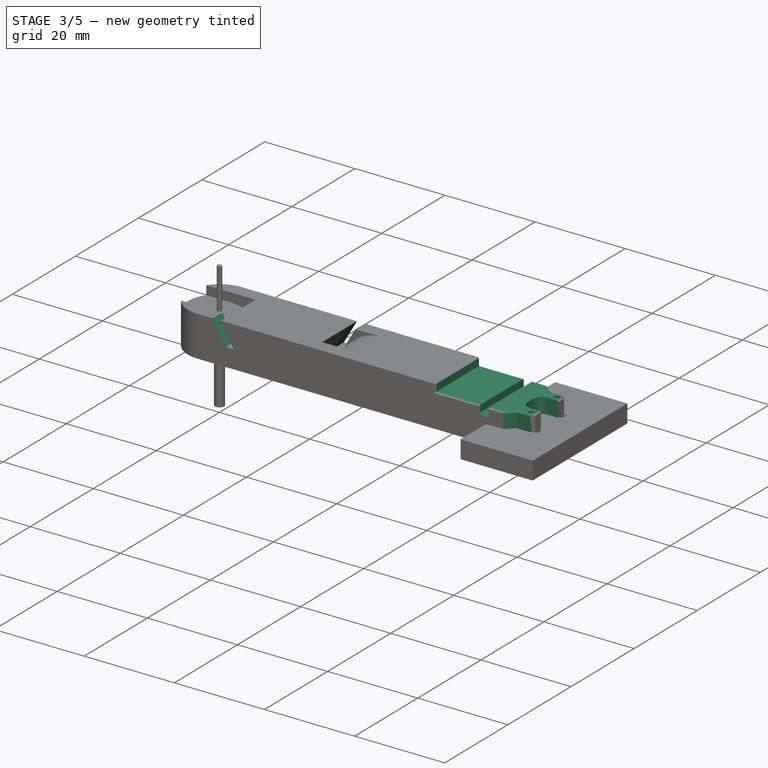
[diagram: stage 3 of 5 — iso view after this stage's code; geometry added in this stage tinted green]
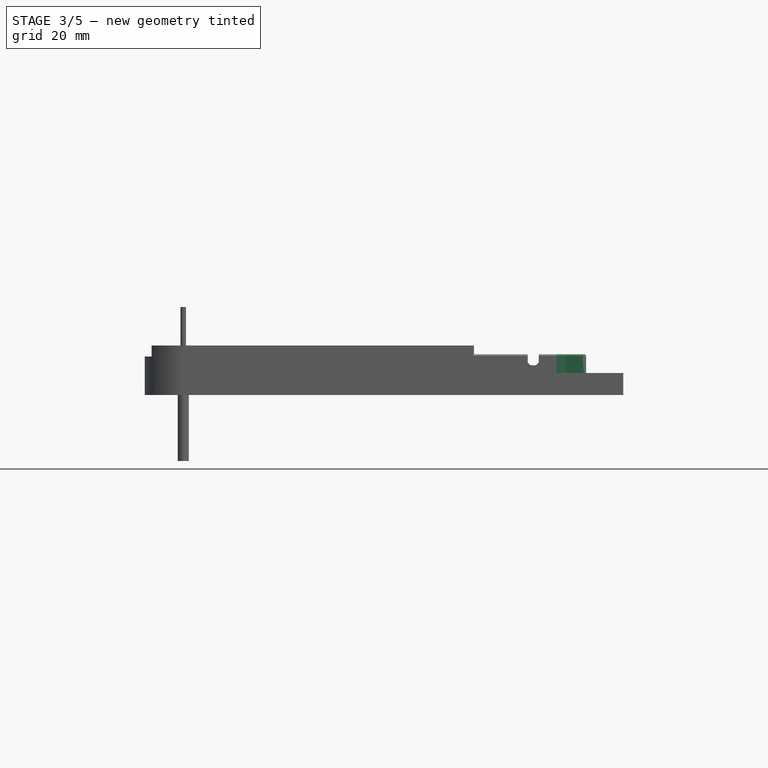
[diagram: stage 3 of 5 — front view after this stage's code; geometry added in this stage tinted green]
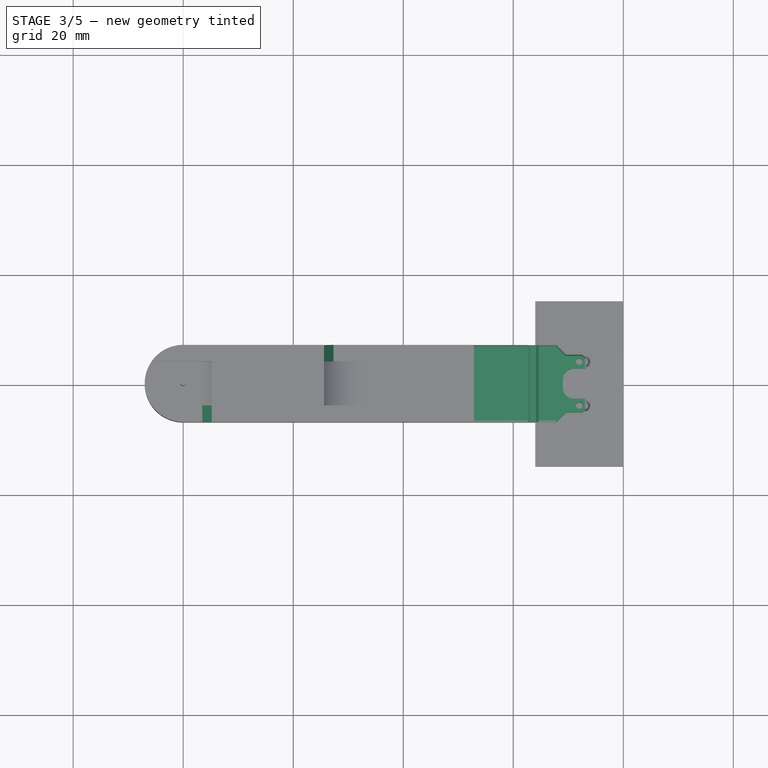
[diagram: stage 3 of 5 — top view after this stage's code; geometry added in this stage tinted green]
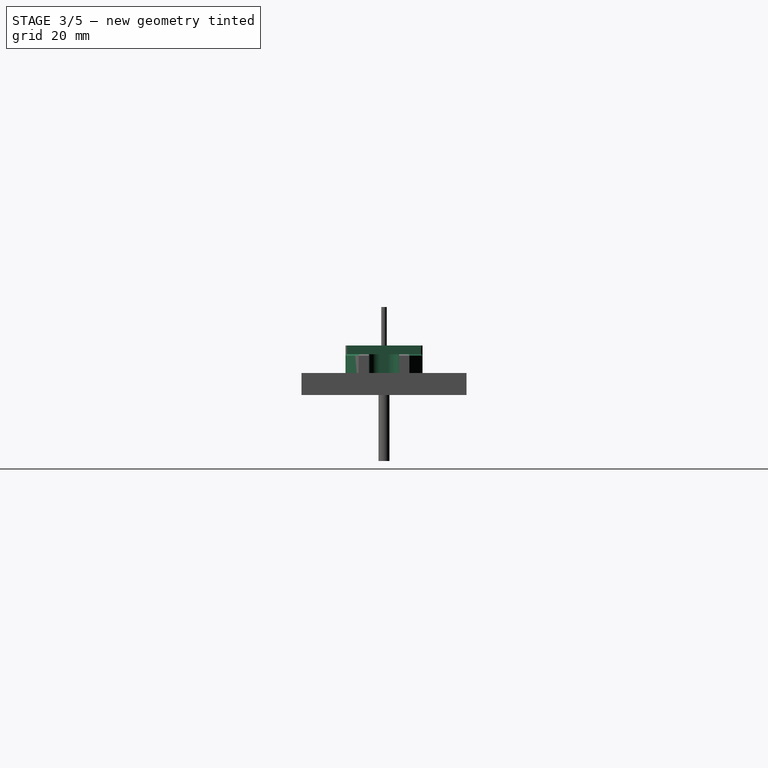
[diagram: stage 3 of 5 — right view after this stage's code; geometry added in this stage tinted green]
FEATURE [Sketcher::SketchObject] Sketch033
  ExternalGeometry = -> [Pocket018]
  FullyConstrained = true
  MapMode = 5
  Placement = pos=(0,0,0) rot=(1,0,0;1.5708rad)
  Support = -> [XZ_Plane001]
  TreeRank = 109
  sketch-geometry (4):
    g0: LineSegment StartX=25.5885 StartY=9 StartZ=0 EndX=27.3205 EndY=9 EndZ=0
    g1: LineSegment StartX=27.3205 StartY=9 StartZ=0 EndX=22.1244 EndY=0 EndZ=0
    g2: LineSegment StartX=22.1244 StartY=0 StartZ=0 EndX=20.3923 EndY=0 EndZ=0
    g3: LineSegment StartX=20.3923 StartY=0 StartZ=0 EndX=25.5885 EndY=9 EndZ=0
  constraints (12):
    c: Coincident(g0,g1)
    c: Coincident(g1,g2)
    c: Horizontal(g2)
    c: Horizontal(g0)
    c: Coincident(g3,g2)
    c: Coincident(g3,g0)
    c: PointOnObject(g0,g-3)
    c: PointOnObject(g0,g-4)
    c: PointOnObject(g2,g-1)
    c: PointOnObject(g2,g-3)
    c: Parallel(g3,g1)
    c: Distance(g0,g1) = 1.5
FEATURE [PartDesign::Pocket] Pocket019
  BaseFeature = -> Pocket018
  ClaimChildren = false
  Fit = 0
  FitJoin = 0
  InnerFit = 0
  InnerFitJoin = 0
  InnerTaperAngle = 0
  InnerTaperAngleRev = 0
  Length = 5
  Length2 = 100
  Linearize = true
  NewSolid = false
  Profile = -> Sketch033
  Suppress = false
  TreeRank = 110
  Type = 1
  _ProfileBasedVersion = 1
FEATURE [Sketcher::SketchObject] Sketch034
  ExternalGeometry = -> [Pocket019,Pocket018]
  FullyConstrained = true
  MapMode = 5
  Placement = pos=(0,0,0) rot=(1,0,0;1.5708rad)
  Support = -> [XZ_Plane001]
  TreeRank = 111
  sketch-geometry (4):
    g0: LineSegment StartX=3.4641 StartY=9 StartZ=0 EndX=5.19615 EndY=9 EndZ=0
    g1: LineSegment StartX=5.19615 StartY=9 StartZ=0 EndX=10.3923 EndY=0 EndZ=0
    g2: LineSegment StartX=10.3923 StartY=0 StartZ=0 EndX=8.66025 EndY=0 EndZ=0
    g3: LineSegment StartX=8.66025 StartY=0 StartZ=0 EndX=3.4641 EndY=9 EndZ=0
  constraints (12):
    c: Horizontal(g0)
    c: Coincident(g0,g1)
    c: Coincident(g1,g2)
    c: Coincident(g2,g3)
    c: Coincident(g3,g0)
    c: PointOnObject(g0,g-3)
    c: PointOnObject(g1,g-1)
    c: Horizontal(g2)
    c: Parallel(g3,g1)
    c: Distance(g2,g1) = 1.5
    c: PointOnObject(g0,g-4)
    c: PointOnObject(g1,g-4)
FEATURE [PartDesign::Pocket] Pocket020
  BaseFeature = -> Pocket019
  ClaimChildren = false
  Fit = 0
  FitJoin = 0
  InnerFit = 0
  InnerFitJoin = 0
  InnerTaperAngle = 0
  InnerTaperAngleRev = 0
  Length = 5
  Length2 = 100
  Linearize = true
  NewSolid = false
  Profile = -> Sketch034
  Reversed = true
  Suppress = false
  TreeRank = 112
  Type = 1
  _ProfileBasedVersion = 1
FEATURE [PartDesign::Pocket] Pocket004
  BaseFeature = -> Pocket020
  ClaimChildren = false
  Fit = 0
  FitJoin = 0
  InnerFit = 0
  InnerFitJoin = 0
  InnerTaperAngle = 0
  InnerTaperAngleRev = 0
  Length = 1.6
  Length2 = 100
  Linearize = true
  NewSolid = false
  Profile = -> Sketch007
  Suppress = false
  TreeRank = 42
  Type = 0
  _ProfileBasedVersion = 1
FEATURE [Sketcher::SketchObject] Sketch008
  ExternalGeometry = -> [Pocket004]
  FullyConstrained = true
  MapMode = 5
  Placement = pos=(0,0,7.4) rot=(0,0,1;0rad)
  Support = -> [Pocket004]
  TreeRank = 43
  sketch-geometry (2):
    g0: Circle CenterX=67 CenterY=-5 CenterZ=0 NormalX=0 NormalY=0 NormalZ=1 AngleXU=0 Radius=1.2
    g1: Circle CenterX=67 CenterY=5 CenterZ=0 NormalX=0 NormalY=0 NormalZ=1 AngleXU=0 Radius=1.2
  constraints (5):
    c: Diameter(g0) = 2.4
    c: Distance(g1,g0) = 10
    c: Distance(g0,g-3) = 6.25
    c: Symmetric(g1,g0,g-1)
    c: Equal(g1,g0)
FEATURE [Sketcher::SketchObject] Sketch031
  ExternalGeometry = -> [Pocket004]
  FullyConstrained = true
  MapMode = 5
  Placement = pos=(0,0,7.4) rot=(0,0,1;0rad)
  Support = -> [Pocket004]
  TreeRank = 103
  sketch-geometry (5):
    g0: LineSegment StartX=62.62 StartY=7 StartZ=0 EndX=64.62 EndY=7 EndZ=0
    g1: LineSegment StartX=64.62 StartY=7 StartZ=0 EndX=64.62 EndY=-7 EndZ=0
    g2: LineSegment StartX=64.62 StartY=-7 StartZ=0 EndX=62.62 EndY=-7 EndZ=0
    g3: LineSegment StartX=62.62 StartY=-7 StartZ=0 EndX=62.62 EndY=7 EndZ=0
    g4: GeomPoint [constr] X=63.62 Y=-7 Z=0
  constraints (13):
    c: Coincident(g0,g1)
    c: Coincident(g1,g2)
    c: Coincident(g2,g3)
    c: Coincident(g3,g0)
    c: Horizontal(g0)
    c: Horizontal(g2)
    c: Vertical(g1)
    c: Vertical(g3)
    c: DistanceX(g0,g0) = 2
    c: Symmetric(g2,g1,g4)
    c: PointOnObject(g1,g-6)
    c: PointOnObject(g0,g-5)
    c: Distance(g4,g-4) = 9.63
FEATURE [Sketcher::SketchObject] Sketch035
  ExternalGeometry = -> [Pocket004]
  FullyConstrained = true
  MapMode = 5
  Placement = pos=(0,0,7.4) rot=(0,0,1;0rad)
  Support = -> [Pocket004]
  TreeRank = 122
  sketch-geometry (4):
    g0: LineSegment StartX=73.25 StartY=2.75 StartZ=0 EndX=69 EndY=2.75 EndZ=0
    g1: LineSegment StartX=69 StartY=2.75 StartZ=0 EndX=69 EndY=-2.75 EndZ=0
    g2: LineSegment StartX=69 StartY=-2.75 StartZ=0 EndX=73.25 EndY=-2.75 EndZ=0
    g3: LineSegment StartX=73.25 StartY=-2.75 StartZ=0 EndX=73.25 EndY=2.75 EndZ=0
  constraints (11):
    c: Coincident(g0,g1)
    c: Coincident(g1,g2)
    c: Coincident(g2,g3)
    c: Coincident(g3,g0)
    c: Horizontal(g0)
    c: Horizontal(g2)
    c: Vertical(g1)
    c: PointOnObject(g0,g-3)
    c: Symmetric(g0,g2,g-1)
    c: DistanceY(g3,g3) = 5.5
    c: DistanceX(g0,g0) = 4.25
FEATURE [PartDesign::Pocket] Pocket021
  BaseFeature = -> Pocket004
  ClaimChildren = false
  Fit = 0
  FitJoin = 0
  InnerFit = 0
  InnerFitJoin = 0
  InnerTaperAngle = 0
  InnerTaperAngleRev = 0
  Length = 5
  Length2 = 100
  Linearize = true
  NewSolid = false
  Profile = -> Sketch035
  Suppress = false
  TreeRank = 123
  Type = 1
  _ProfileBasedVersion = 1
FEATURE [PartDesign::Fillet] Fillet
  Base = -> Pocket021 [Edge65,Edge67]
  BaseFeature = -> Pocket021
  NewSolid = false
  Radius = 2
  SupportTransform = false
  Suppress = false
  TreeRank = 168
FEATURE [Sketcher::SketchObject] Sketch040
  ExternalGeometry = -> [Fillet]
  FullyConstrained = true
  MapMode = 5
  Placement = pos=(0,0,7.4) rot=(0,0,1;0rad)
  Support = -> [Fillet]
  TreeRank = 169
  sketch-geometry (10):
    g0: LineSegment [constr] StartX=67.5 StartY=7 StartZ=0 EndX=69.5 EndY=5 EndZ=0
    g1: LineSegment [constr] StartX=73.25 StartY=4.25 StartZ=0 EndX=73.25 EndY=7 EndZ=0
    g2: LineSegment [constr] StartX=73.25 StartY=7 StartZ=0 EndX=67.5 EndY=7 EndZ=0
    g3: LineSegment [constr] StartX=69.5 StartY=5 StartZ=0 EndX=72.5 EndY=5 EndZ=0
    g4: LineSegment [constr] StartX=72.5 StartY=5 StartZ=0 EndX=73.25 EndY=4.25 EndZ=0
    g5: LineSegment StartX=67.8536 StartY=7 StartZ=0 EndX=69.6036 EndY=5.25 EndZ=0
    g6: LineSegment StartX=69.6036 StartY=5.25 StartZ=0 EndX=72.6036 EndY=5.25 EndZ=0
    g7: LineSegment StartX=72.6036 StartY=5.25 StartZ=0 EndX=73.25 EndY=4.60355 EndZ=0
    g8: LineSegment StartX=73.25 StartY=4.60355 StartZ=0 EndX=73.25 EndY=7 EndZ=0
    g9: LineSegment StartX=73.25 StartY=7 StartZ=0 EndX=67.8536 EndY=7 EndZ=0
  constraints (29):
    c: Coincident(g1,g2)
    c: Coincident(g2,g0)
    c: PointOnObject(g1,g-4)
    c: PointOnObject(g1,g-3)
    c: Horizontal(g2)
    c: Vertical(g1)
    c: Angle(g0,g2) = 0.785398
    c: DistanceX(g0,g1) = 3.75
    c: Coincident(g0,g3)
    c: Horizontal(g3)
    c: Coincident(g3,g4)
    c: Coincident(g1,g4)
    c: Distance(g3,g2) = 2
    c: Distance(g3,g1) = 0.75
    c: DistanceY(g1,g3) = 0.75
    c: PointOnObject(g5,g2)
    c: Coincident(g5,g6)
    c: Horizontal(g6)
    c: Coincident(g6,g7)
    c: Coincident(g7,g8)
    c: Coincident(g8,g9)
    c: Coincident(g9,g5)
    c: Coincident(g8,g1)
    c: PointOnObject(g7,g1)
    c: Parallel(g7,g4)
    c: Parallel(g5,g0)
    c: Distance(g5,g0) = 0.25
    c: Distance(g5,g3) = 0.25
    c: Distance(g6,g4) = 0.25
FEATURE [PartDesign::Pocket] Pocket023
  BaseFeature = -> Fillet
  ClaimChildren = false
  Fit = 0
  FitJoin = 0
  InnerFit = 0
  InnerFitJoin = 0
  InnerTaperAngle = 0
  InnerTaperAngleRev = 0
  Length = 5
  Length2 = 100
  Linearize = true
  NewSolid = false
  Profile = -> Sketch040
  Suppress = false
  TreeRank = 170
  Type = 1
  _ProfileBasedVersion = 1
FEATURE [PartDesign::Mirrored] Mirrored
  BaseFeature = -> Pocket023
  CopyShape = false
  MirrorPlane = -> XZ_Plane001
  NewSolid = false
  OriginalSubs = -> [Pocket023]
  Originals = -> [Pocket023]
  ParallelTransform = true
  SubTransform = true
  Suppress = false
  TreeRank = 171
FEATURE [PartDesign::Pocket] Pocket022
  BaseFeature = -> Mirrored
  ClaimChildren = false
  Fit = 0
  FitJoin = 0
  InnerFit = 0
  InnerFitJoin = 0
  InnerTaperAngle = 0
  InnerTaperAngleRev = 0
  Length = 2.4
  Length2 = 100
  Linearize = true
  NewSolid = false
  Profile = -> Sketch036
  Suppress = false
  TreeRank = 125
  Type = 1
  _ProfileBasedVersion = 1
FEATURE [PartDesign::Chamfer] Chamfer
  Angle = 45
  Base = -> Pocket022 [Edge75,Edge59,Edge74,Edge60,Edge67,Edge63,Edge57,Edge54,Edge43,Edge47,Edge51,Edge55]
  BaseFeature = -> Pocket022
  ChamferType = 0
  FlipDirection = false
  NewSolid = false
  Size = 0.25
  Size2 = 1
  SupportTransform = false
  Suppress = false
  TreeRank = 115
FEATURE [PartDesign::Pocket] Pocket017
  BaseFeature = -> Chamfer
  ClaimChildren = false
  Fit = 0
  FitJoin = 0
  InnerFit = 0
  InnerFitJoin = 0
  InnerTaperAngle = 0
  InnerTaperAngleRev = 0
  Length = 2
  Length2 = 100
  Linearize = true
  NewSolid = false
  Profile = -> Sketch031
  Suppress = false
  TreeRank = 104
  Type = 0
  _ProfileBasedVersion = 1
FEATURE [PartDesign::Chamfer] Chamfer005
  Angle = 45
  Base = -> Pocket017 [Edge152,Edge77]
  BaseFeature = -> Pocket017
  ChamferType = 0
  FlipDirection = false
  NewSolid = false
  Size = 0.5
  Size2 = 1
  SupportTransform = false
  Suppress = false
  TreeRank = 172
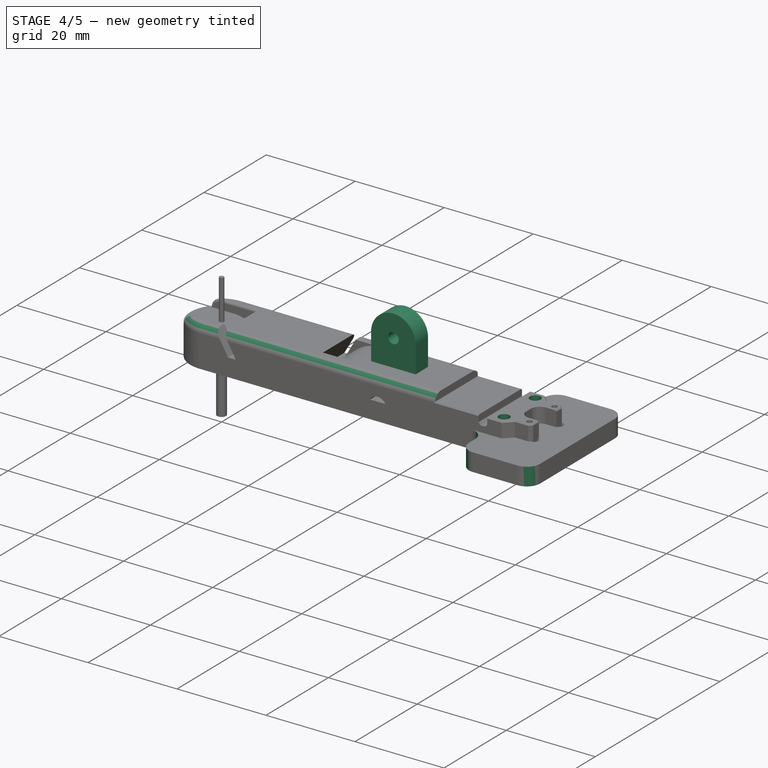
[diagram: stage 4 of 5 — iso view after this stage's code; geometry added in this stage tinted green]
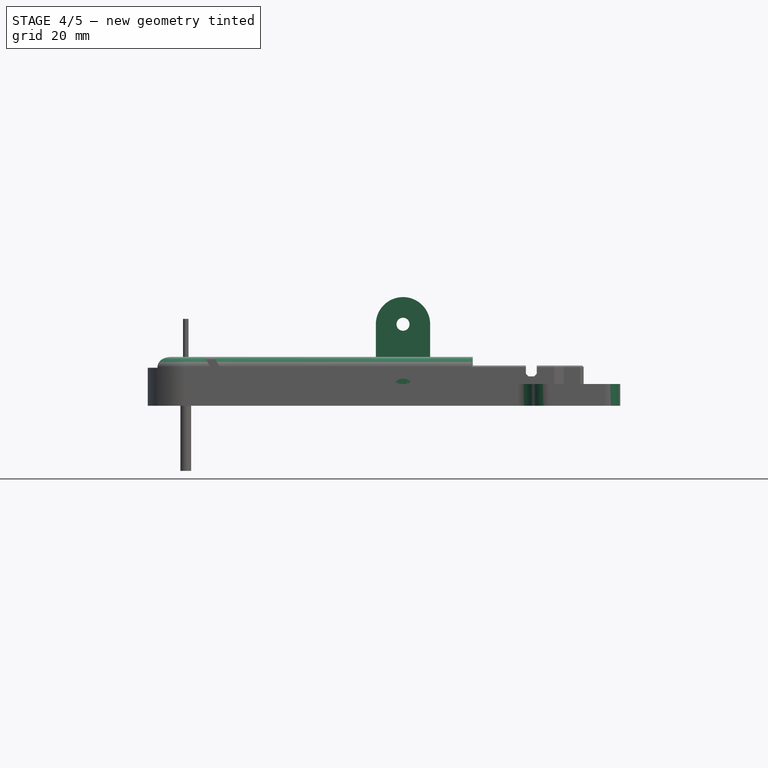
[diagram: stage 4 of 5 — front view after this stage's code; geometry added in this stage tinted green]
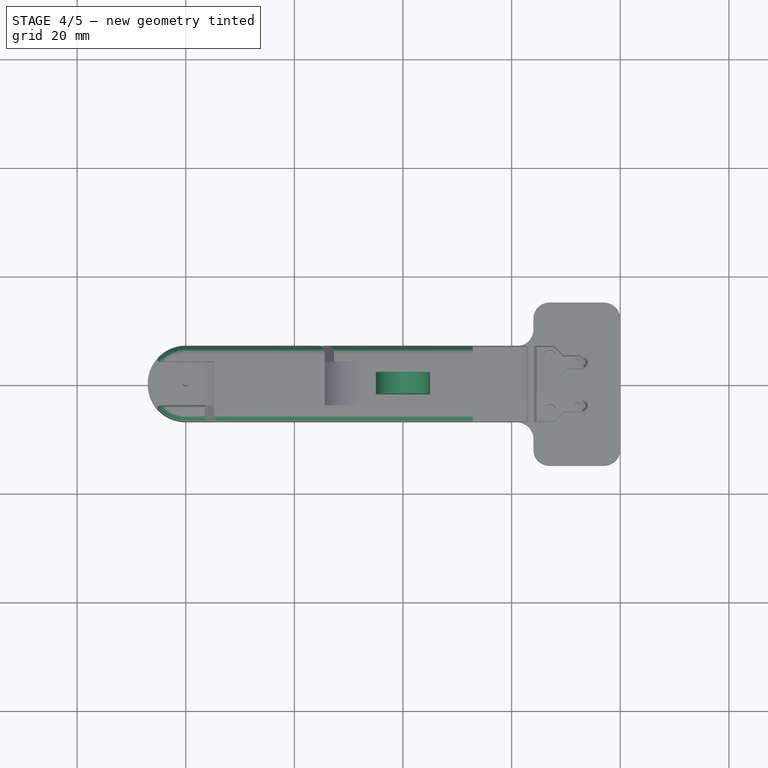
[diagram: stage 4 of 5 — top view after this stage's code; geometry added in this stage tinted green]
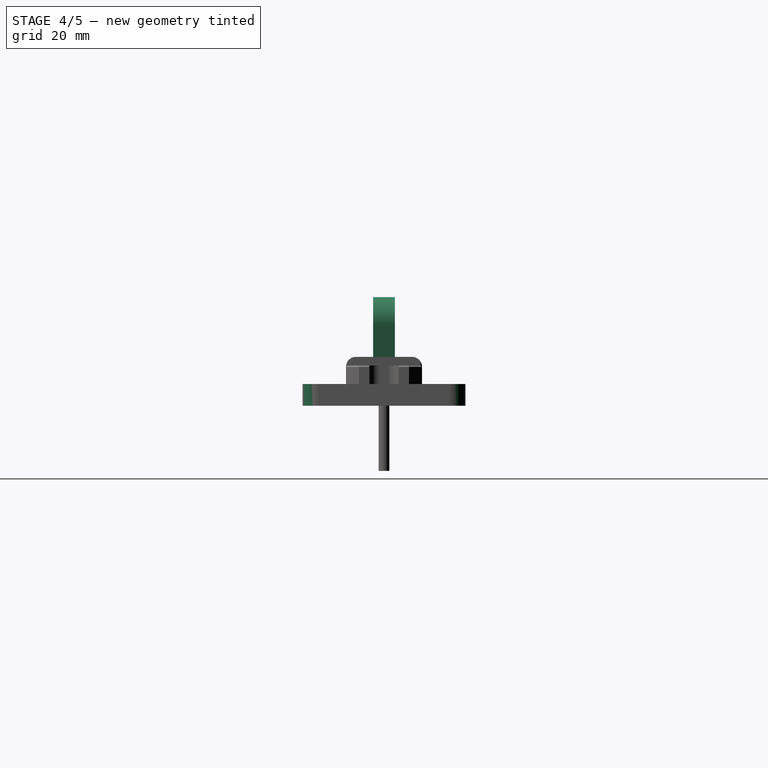
[diagram: stage 4 of 5 — right view after this stage's code; geometry added in this stage tinted green]
FEATURE [PartDesign::Pocket] Pocket005
  BaseFeature = -> Chamfer005
  ClaimChildren = false
  Fit = 0
  FitJoin = 0
  InnerFit = 0
  InnerFitJoin = 0
  InnerTaperAngle = 0
  InnerTaperAngleRev = 0
  Length = 5
  Length2 = 100
  Linearize = true
  NewSolid = false
  Profile = -> Sketch008
  Suppress = false
  TreeRank = 44
  Type = 1
  _ProfileBasedVersion = 1
FEATURE [PartDesign::Pocket] Pocket006
  BaseFeature = -> Pocket005
  ClaimChildren = false
  Fit = 0
  FitJoin = 0
  InnerFit = 0
  InnerFitJoin = 0
  InnerTaperAngle = 0
  InnerTaperAngleRev = 0
  Length = 5
  Length2 = 100
  Linearize = true
  Midplane = true
  NewSolid = false
  Profile = -> Sketch009
  Suppress = false
  TreeRank = 48
  Type = 1
  _ProfileBasedVersion = 1
FEATURE [Sketcher::SketchObject] Sketch045
  ExternalGeometry = -> [Import001]
  FullyConstrained = true
  MapMode = 5
  Placement = pos=(0,0,0) rot=(1,0,0;1.5708rad)
  Support = -> [XZ_Plane001]
  TreeRank = 262
  sketch-geometry (4):
    g0: LineSegment StartX=34.6665 StartY=3.84475 StartZ=0 EndX=34.0575 EndY=0 EndZ=0
    g1: LineSegment StartX=45.3967 StartY=3.18846 StartZ=0 EndX=45.5081 EndY=0 EndZ=0
    g2: ArcOfCircle CenterX=40 CenterY=3 CenterZ=0 NormalX=0 NormalY=0 NormalZ=1 AngleXU=0 Radius=5.4 StartAngle=0.0349066 EndAngle=2.98451
    g3: LineSegment StartX=34.0575 StartY=0 StartZ=0 EndX=45.5081 EndY=0 EndZ=0
  constraints (10):
    c: PointOnObject(g0,g-1)
    c: PointOnObject(g1,g-1)
    c: Angle(g1,g-1) = 1.53589
    c: Angle(g0,g-1) = 1.72788
    c: Coincident(g2,g-5)
    c: Tangent(g2,g1) = 1.5708
    c: Tangent(g2,g0) = -1.5708
    c: Diameter(g2) = 10.8
    c: Coincident(g3,g0)
    c: Coincident(g3,g1)
FEATURE [PartDesign::Pocket] Pocket025
  BaseFeature = -> Pocket006
  ClaimChildren = false
  Fit = 0
  FitJoin = 0
  InnerFit = 0
  InnerFitJoin = 0
  InnerTaperAngle = 0
  InnerTaperAngleRev = 0
  Length = 4.6
  Length2 = 100
  Linearize = true
  Midplane = true
  NewSolid = false
  Profile = -> Sketch045
  Suppress = false
  TreeRank = 295
  Type = 0
  _ProfileBasedVersion = 1
FEATURE [Sketcher::SketchObject] Sketch011
  ExternalGeometry = -> [Pocket025]
  FullyConstrained = true
  MapMode = 5
  Placement = pos=(0,-7,0) rot=(1,0,0;1.5708rad)
  Support = -> [Pocket025]
  TreeRank = 51
  sketch-geometry (1):
    g0: Circle CenterX=40 CenterY=3 CenterZ=0 NormalX=0 NormalY=0 NormalZ=1 AngleXU=0 Radius=2
  constraints (2):
    c: Diameter(g0) = 4
    c: Coincident(g0,g-3)
FEATURE [PartDesign::Chamfer] Chamfer008
  Angle = 45
  Base = -> Pocket025 [Edge191,Edge195]
  BaseFeature = -> Pocket025
  ChamferType = 0
  FlipDirection = false
  NewSolid = false
  Size = 2
  Size2 = 1
  SupportTransform = false
  Suppress = false
  TreeRank = 296
FEATURE [PartDesign::Pocket] Pocket008
  BaseFeature = -> Chamfer008
  ClaimChildren = false
  Fit = 0
  FitJoin = 0
  InnerFit = 0
  InnerFitJoin = 0
  InnerTaperAngle = 0
  InnerTaperAngleRev = 0
  Length = 2
  Length2 = 100
  Linearize = true
  NewSolid = false
  Profile = -> Sketch011
  Suppress = false
  TreeRank = 52
  Type = 0
  _ProfileBasedVersion = 1
FEATURE [Sketcher::SketchObject] Sketch012
  ExternalGeometry = -> [Pocket008]
  FullyConstrained = true
  MapMode = 5
  Placement = pos=(0,7,0) rot=(0,0.707107,0.707107;3.14159rad)
  Support = -> [Pocket008]
  TreeRank = 53
  sketch-geometry (7):
    g0: LineSegment StartX=-37.5751 StartY=3 StartZ=0 EndX=-38.7876 EndY=5.1 EndZ=0
    g1: LineSegment StartX=-38.7876 StartY=5.1 StartZ=0 EndX=-41.2124 EndY=5.1 EndZ=0
    g2: LineSegment StartX=-41.2124 StartY=5.1 StartZ=0 EndX=-42.4249 EndY=3 EndZ=0
    g3: LineSegment StartX=-42.4249 StartY=3 StartZ=0 EndX=-41.2124 EndY=0.9 EndZ=0
    g4: LineSegment StartX=-41.2124 StartY=0.9 StartZ=0 EndX=-38.7876 EndY=0.9 EndZ=0
    g5: LineSegment StartX=-38.7876 StartY=0.9 StartZ=0 EndX=-37.5751 EndY=3 EndZ=0
    g6: Circle [constr] CenterX=-40 CenterY=3 CenterZ=0 NormalX=0 NormalY=0 NormalZ=1 AngleXU=0 Radius=2.42487
  constraints (16):
    c: Coincident(g0,g1)
    c: Coincident(g1,g2)
    c: Coincident(g2,g3)
    c: Coincident(g3,g4)
    c: Coincident(g4,g5)
    c: Coincident(g5,g0)
    c: Equal(g0, g1-g5) x5
    c: PointOnObject(g0,g6)
    c: PointOnObject(g1,g6)
    c: PointOnObject(g2,g6)
    c: PointOnObject(g3,g6)
    c: PointOnObject(g4,g6)
    c: PointOnObject(g5,g6)
    c: Parallel(g4,g-1)
    c: Distance(g1,g3) = 4.2
    c: Coincident(g-3,g6)
FEATURE [PartDesign::Pocket] Pocket009
  BaseFeature = -> Pocket008
  ClaimChildren = false
  Fit = 0
  FitJoin = 0
  InnerFit = 0
  InnerFitJoin = 0
  InnerTaperAngle = 0
  InnerTaperAngleRev = 0
  Length = 1.5
  Length2 = 100
  Linearize = true
  NewSolid = false
  Profile = -> Sketch012
  Suppress = false
  TreeRank = 54
  Type = 0
  _ProfileBasedVersion = 1
FEATURE [PartDesign::Fillet] Fillet003
  Base = -> Pocket009 [Edge120,Edge97,Edge149,Edge162]
  BaseFeature = -> Pocket009
  NewSolid = false
  Radius = 1.85
  SupportTransform = false
  Suppress = false
  TreeRank = 55
FEATURE [PartDesign::Fillet] Fillet004
  Base = -> Fillet003 [Edge191,Edge112]
  BaseFeature = -> Fillet003
  NewSolid = false
  Radius = 0.5
  SupportTransform = false
  Suppress = false
  TreeRank = 297
FEATURE [PartDesign::Fillet] Fillet001
  Base = -> Mirrored001 [Edge5,Edge32,Edge1,Edge2,Edge8,Edge31]
  BaseFeature = -> Mirrored001
  NewSolid = false
  Radius = 3
  SupportTransform = false
  Suppress = false
  TreeRank = 16
FEATURE [Sketcher::SketchObject] Sketch002
  FullyConstrained = true
  MapMode = 5
  Placement = pos=(0,0,4) rot=(0,0,1;0rad)
  Support = -> [Fillet001]
  TreeRank = 17
  sketch-geometry (5):
    g0: LineSegment StartX=35 StartY=2 StartZ=0 EndX=45 EndY=2 EndZ=0
    g1: LineSegment StartX=45 StartY=2 StartZ=0 EndX=45 EndY=-2 EndZ=0
    g2: LineSegment StartX=45 StartY=-2 StartZ=0 EndX=35 EndY=-2 EndZ=0
    g3: LineSegment StartX=35 StartY=-2 StartZ=0 EndX=35 EndY=2 EndZ=0
    g4: GeomPoint [constr] X=40 Y=-2 Z=0
  constraints (13):
    c: Coincident(g0,g1)
    c: Coincident(g1,g2)
    c: Coincident(g2,g3)
    c: Coincident(g3,g0)
    c: Horizontal(g0)
    c: Horizontal(g2)
    c: Vertical(g1)
    c: Vertical(g3)
    c: DistanceX(g2,g2) = 10
    c: DistanceY(g3,g3) = 4
    c: DistanceY(g-1,g0) = 2
    c: Symmetric(g2,g1,g4)
    c: DistanceX(g-2,g4) = 40
FEATURE [PartDesign::Pad] Pad001
  BaseFeature = -> Fillet001
  ClaimChildren = false
  Direction = (1,1,1)
  Fit = 0
  FitJoin = 0
  InnerFit = 0
  InnerFitJoin = 0
  InnerTaperAngle = 0
  InnerTaperAngleRev = 0
  Length = 16
  Length2 = 100
  Linearize = true
  NewSolid = false
  Profile = -> Sketch002
  Suppress = false
  TreeRank = 18
  Type = 0
  _ProfileBasedVersion = 1
FEATURE [Sketcher::SketchObject] Sketch003
  ExternalGeometry = -> [Pad001]
  FullyConstrained = true
  MapMode = 5
  Placement = pos=(0,-2,0) rot=(1,0,0;1.5708rad)
  Support = -> [Pad001]
  TreeRank = 19
  sketch-geometry (7):
    g0: ArcOfCircle CenterX=40 CenterY=15 CenterZ=0 NormalX=0 NormalY=0 NormalZ=1 AngleXU=0 Radius=5 StartAngle=1e-16 EndAngle=3.14159
    g1: GeomPoint [constr] X=40 Y=20 Z=0
    g2: LineSegment StartX=35 StartY=15 StartZ=0 EndX=34 EndY=15 EndZ=0
    g3: LineSegment StartX=34 StartY=15 StartZ=0 EndX=34 EndY=22 EndZ=0
    g4: LineSegment StartX=34 StartY=22 StartZ=0 EndX=46 EndY=22 EndZ=0
    g5: LineSegment StartX=46 StartY=22 StartZ=0 EndX=46 EndY=15 EndZ=0
    g6: LineSegment StartX=46 StartY=15 StartZ=0 EndX=45 EndY=15 EndZ=0
  constraints (21):
    c: Angle(g0) = 3.14159
    c: PointOnObject(g1,g0)
    c: PointOnObject(g1,g-5)
    c: PointOnObject(g0,g-3)
    c: Coincident(g2,g0)
    c: Horizontal(g2)
    c: Coincident(g3,g2)
    c: Vertical(g3)
    c: Coincident(g4,g3)
    c: Horizontal(g4)
    c: Coincident(g5,g4)
    c: Vertical(g5)
    c: Coincident(g6,g5)
    c: Coincident(g6,g0)
    c: Horizontal(g6)
    c: Equal(g2,g6)
    c: Distance(g1,g4) = 2
    c: DistanceX(g2,g2) = 1
    c: Equal(g5,g3)
    c: Tangent(g0,g-5)
    c: PointOnObject(g0,g-4)
FEATURE [PartDesign::Pocket] Pocket001
  BaseFeature = -> Pad001
  ClaimChildren = false
  Fit = 0
  FitJoin = 0
  InnerFit = 0
  InnerFitJoin = 0
  InnerTaperAngle = 0
  InnerTaperAngleRev = 0
  Length = 5
  Length2 = 100
  Linearize = true
  NewSolid = false
  Profile = -> Sketch003
  Suppress = false
  TreeRank = 20
  Type = 1
  _ProfileBasedVersion = 1
FEATURE [Sketcher::SketchObject] Sketch004
  ExternalGeometry = -> [Pocket001]
  FullyConstrained = true
  MapMode = 5
  Placement = pos=(0,-2,0) rot=(1,0,0;1.5708rad)
  Support = -> [Pocket001]
  TreeRank = 21
  sketch-geometry (1):
    g0: Circle CenterX=40 CenterY=15 CenterZ=0 NormalX=0 NormalY=0 NormalZ=1 AngleXU=0 Radius=1.2
  constraints (3):
    c: Diameter(g0) = 2.4
    c: Distance(g0,g-3) = 11
    c: Distance(g0,g-4) = 5
FEATURE [PartDesign::Pocket] Pocket002
  BaseFeature = -> Pocket001
  ClaimChildren = false
  Fit = 0
  FitJoin = 0
  InnerFit = 0
  InnerFitJoin = 0
  InnerTaperAngle = 0
  InnerTaperAngleRev = 0
  Length = 5
  Length2 = 100
  Linearize = true
  NewSolid = false
  Profile = -> Sketch004
  Suppress = false
  TreeRank = 22
  Type = 1
  _ProfileBasedVersion = 1
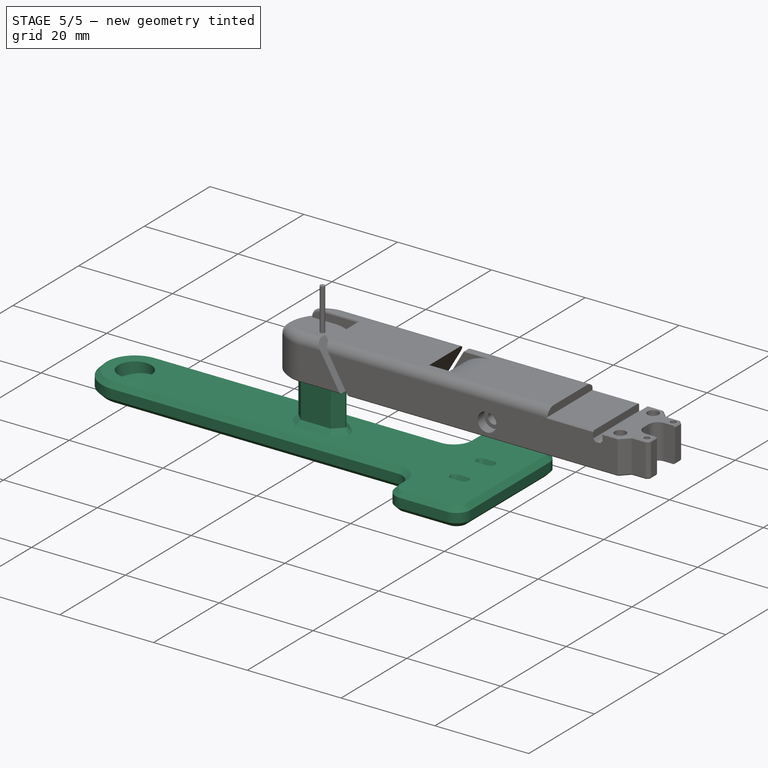
[diagram: stage 5 of 5 — iso view after this stage's code; geometry added in this stage tinted green]
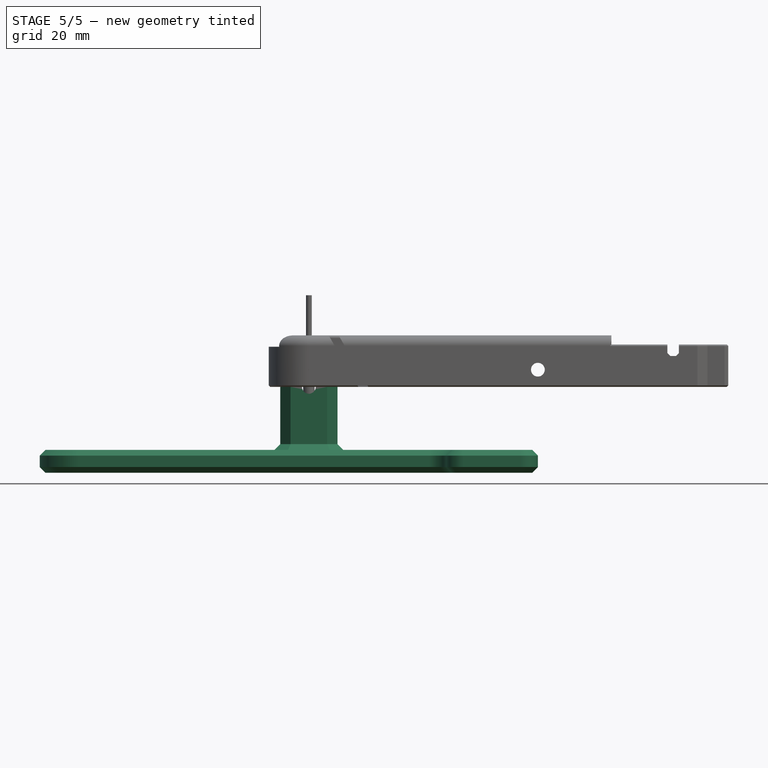
[diagram: stage 5 of 5 — front view after this stage's code; geometry added in this stage tinted green]
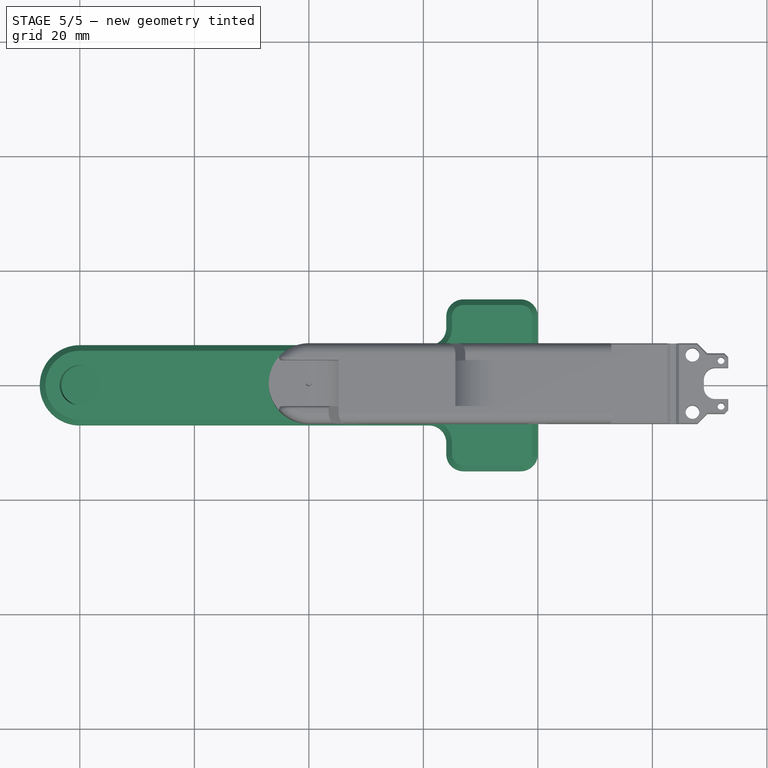
[diagram: stage 5 of 5 — top view after this stage's code; geometry added in this stage tinted green]
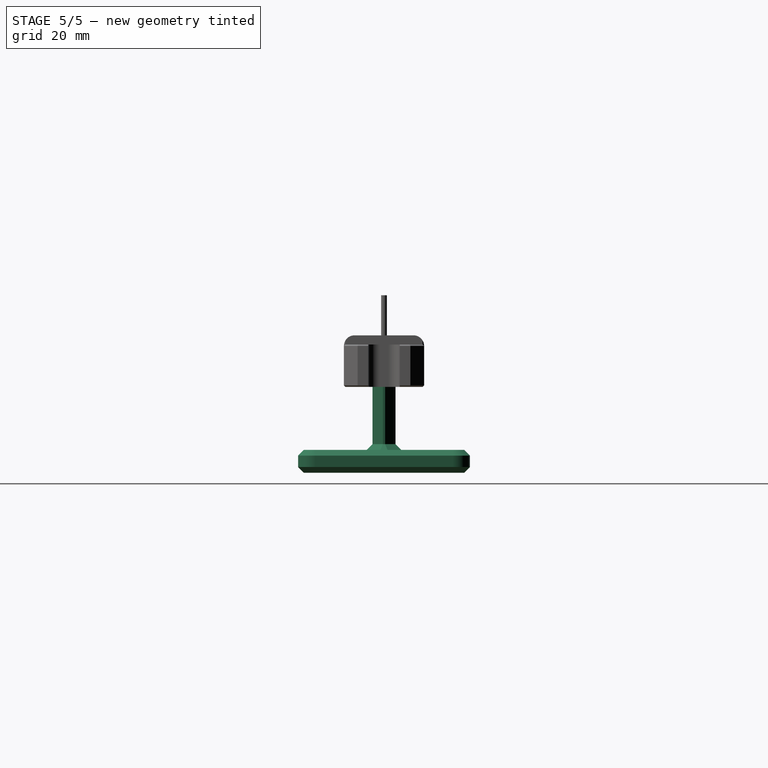
[diagram: stage 5 of 5 — right view after this stage's code; geometry added in this stage tinted green]
FEATURE [PartDesign::Chamfer] Chamfer001
  Angle = 45
  Base = -> Fillet004 [Edge108,Edge84,Edge85,Edge82,Edge80,Edge78,Edge79,Edge81,Edge83,Edge265]
  BaseFeature = -> Fillet004
  ChamferType = 0
  FlipDirection = false
  NewSolid = false
  Size = 0.5
  Size2 = 1
  SupportTransform = false
  Suppress = false
  TreeRank = 116
FEATURE [PartDesign::Chamfer] Chamfer003
  Angle = 45
  Base = -> Chamfer001 [Edge13,Edge18,Edge31,Edge16,Edge14,Edge12,Edge10,Edge9,Edge5,Edge7,Edge11]
  BaseFeature = -> Chamfer001
  ChamferType = 0
  FlipDirection = false
  NewSolid = false
  Size = 0.25
  Size2 = 1
  SupportTransform = false
  Suppress = false
  TreeRank = 120
FEATURE [PartDesign::Chamfer] Chamfer002
  Angle = 45
  Base = -> Pocket002 [Edge23,Edge8]
  BaseFeature = -> Pocket002
  ChamferType = 0
  FlipDirection = false
  NewSolid = false
  Size = 1
  Size2 = 1
  SupportTransform = false
  Suppress = false
  TreeRank = 118
FEATURE [PartDesign::Chamfer] Chamfer006
  Angle = 45
  Base = -> Chamfer002 [Edge115,Edge117]
  BaseFeature = -> Chamfer002
  ChamferType = 0
  FlipDirection = false
  NewSolid = false
  Size = 1.8
  Size2 = 1
  SupportTransform = false
  Suppress = false
  TreeRank = 283
FEATURE [PartDesign::Chamfer] Chamfer007
  Angle = 45
  Base = -> Chamfer006 [Edge5,Edge3,Edge1,Edge2,Edge4,Edge6,Edge8,Edge7]
  BaseFeature = -> Chamfer006
  ChamferType = 0
  FlipDirection = false
  NewSolid = false
  Size = 1
  Size2 = 1
  SupportTransform = false
  Suppress = false
  TreeRank = 284
FEATURE [PartDesign::Body] Body  label="Bottom"
  AutoGroupSolids = false
  ClaimAllChildren = false
  ExportMode = 0
  Group = -> [Sketch,Pad,Sketch001,Pocket,Sketch046,Sketch047,SubtractiveLoft001,Mirrored001,Fillet001,Sketch002,Pad001,Sketch003,Pocket001,Sketch004,Pocket002,Chamfer002,Chamfer006,Chamfer007]
  Origin = -> Origin
  Tip = -> Chamfer007
  TreeRank = 10
  _ExportChildren = -> [Pad,Pocket,SubtractiveLoft001,Mirrored001,Fillet001,Pad001,Pocket001,Pocket002,Chamfer002,Chamfer006,Chamfer007]
  _GroupVersion = 1
FEATURE [PartDesign::FeatureBase] Clone006
  BaseFeature = -> Body
  NewSolid = false
  Placement = pos=(-40,0,-15) rot=(0,0,1;0rad)
  Suppress = false
  TreeRank = 282
FEATURE [PartDesign::Body] Body013  label="Bottom舒张状态"
  AutoGroupSolids = false
  BaseFeature = -> Body
  ClaimAllChildren = false
  ExportMode = 0
  Group = -> [Clone006]
  Origin = -> Origin013
  Placement = pos=(40,0,15) rot=(0,1,0;0.15708rad)
  Tip = -> Clone006
  TreeRank = 33
  _ExportChildren = -> [Clone006]
  _GroupVersion = 1
FEATURE [PartDesign::FeatureBase] Clone007
  BaseFeature = -> Body
  NewSolid = false
  Placement = pos=(-40,0,-15) rot=(0,0,1;0rad)
  Suppress = false
  TreeRank = 294
FEATURE [PartDesign::Body] Body008  label="M2x12"
  AutoGroupSolids = false
  ClaimAllChildren = false
  ExportMode = 0
  Group = -> [Sketch042,Pad007,Sketch043,Pocket024,Sketch044,Pad008,Fillet005]
  Origin = -> Origin008
  Placement = pos=(40,-5,15) rot=(1,0,0;1.5708rad)
  Tip = -> Fillet005
  TreeRank = 216
  _ExportChildren = -> [Pad007,Pocket024,Pad008,Fillet005]
  _GroupVersion = 1
FEATURE [PartDesign::FeatureBase] Clone003
  BaseFeature = -> Body008
  NewSolid = false
  Suppress = false
  TreeRank = 233
FEATURE [PartDesign::Body] Body010  label="M2x12_001"
  AutoGroupSolids = false
  BaseFeature = -> Body008
  ClaimAllChildren = false
  ExportMode = 0
  Group = -> [Clone003]
  Origin = -> Origin010
  Placement = pos=(67,5,21) rot=(0,0,1;0rad)
  Tip = -> Clone003
  TreeRank = 234
  _ExportChildren = -> [Clone003]
  _GroupVersion = 1
FEATURE [PartDesign::FeatureBase] Clone004
  BaseFeature = -> Body008
  NewSolid = false
  Suppress = false
  TreeRank = 258
FEATURE [PartDesign::Body] Body005  label="M2螺母"
  AutoGroupSolids = false
  ClaimAllChildren = false
  ExportMode = 0
  Group = -> [Sketch041,Pad006,Fillet006]
  Origin = -> Origin005
  Placement = pos=(67,5,8.9) rot=(0,0,1;0rad)
  Tip = -> Fillet006
  TreeRank = 182
  _ExportChildren = -> [Pad006,Fillet006]
  _GroupVersion = 1
FEATURE [PartDesign::FeatureBase] Clone001
  BaseFeature = -> Body005
  NewSolid = false
  Suppress = false
  TreeRank = 194
FEATURE [PartDesign::Body] Body006  label="M2螺母001"
  AutoGroupSolids = false
  BaseFeature = -> Body005
  ClaimAllChildren = false
  ExportMode = 0
  Group = -> [Clone001]
  Origin = -> Origin006
  Placement = pos=(67,-5,8.9) rot=(0,0,1;0rad)
  Tip = -> Clone001
  TreeRank = 195
  _ExportChildren = -> [Clone001]
  _GroupVersion = 1
FEATURE [PartDesign::FeatureBase] Clone002
  BaseFeature = -> Body005
  NewSolid = false
  Suppress = false
  TreeRank = 205
FEATURE [PartDesign::Body] Body003  label="定位销"
  AutoGroupSolids = false
  ClaimAllChildren = false
  ExportMode = 0
  Group = -> [Sketch039,Pad005,Chamfer009,Fillet007]
  Origin = -> Origin003
  Placement = pos=(72,-4,4) rot=(0,0,1;0rad)
  Tip = -> Fillet007
  TreeRank = 154
  _ExportChildren = -> [Pad005,Chamfer009,Fillet007]
  _GroupVersion = 1
FEATURE [PartDesign::FeatureBase] Clone
  BaseFeature = -> Body003
  NewSolid = false
  Suppress = false
  TreeRank = 166
FEATURE [PartDesign::Body] Body004  label="定位销001"
  AutoGroupSolids = false
  BaseFeature = -> Body003
  ClaimAllChildren = false
  ExportMode = 0
  Group = -> [Clone]
  Origin = -> Origin004
  Placement = pos=(72,4,4) rot=(0,0,1;0rad)
  Tip = -> Clone
  TreeRank = 167
  _ExportChildren = -> [Clone]
  _GroupVersion = 1
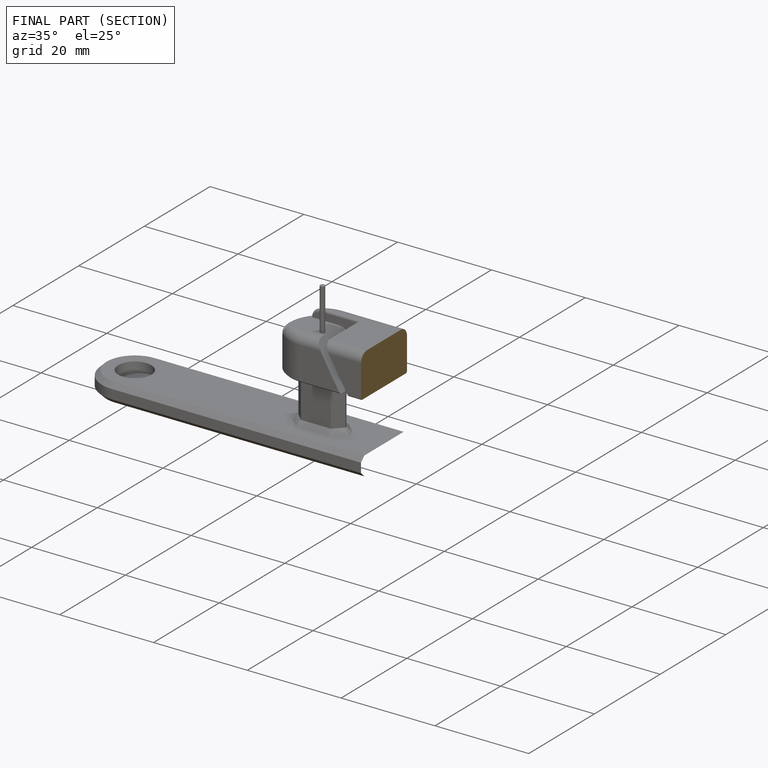
[diagram: finished part — half-section view (interior)]
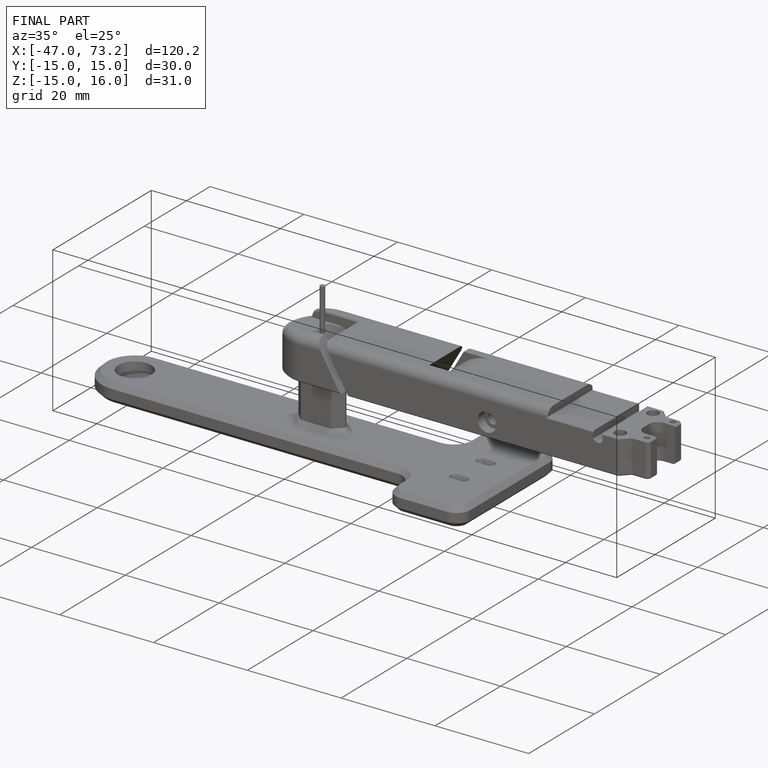
[diagram: finished part — iso view with bounding-box wireframe]
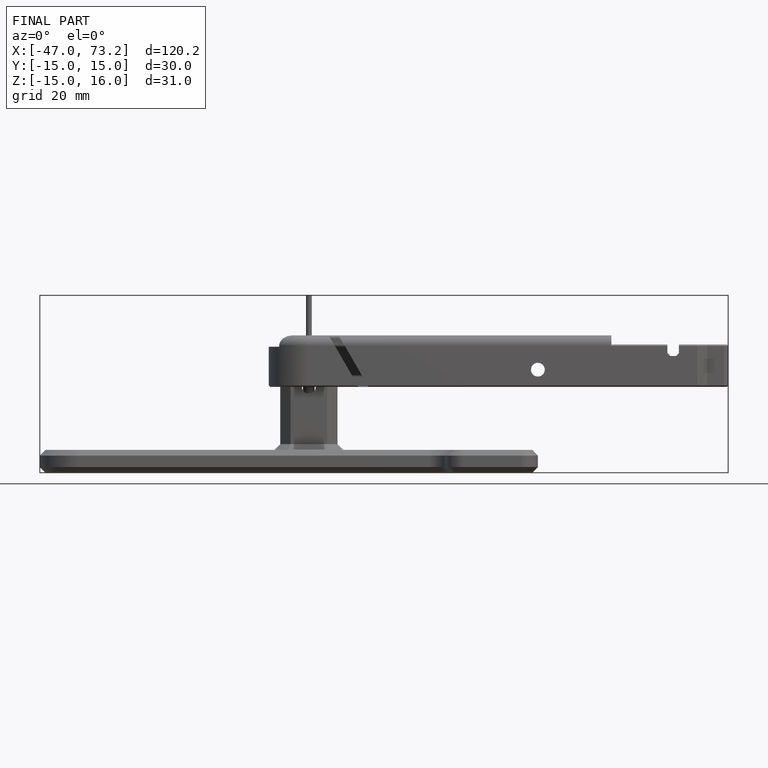
[diagram: finished part — front view with bounding-box wireframe]
